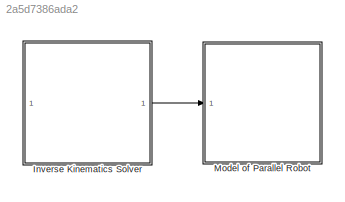
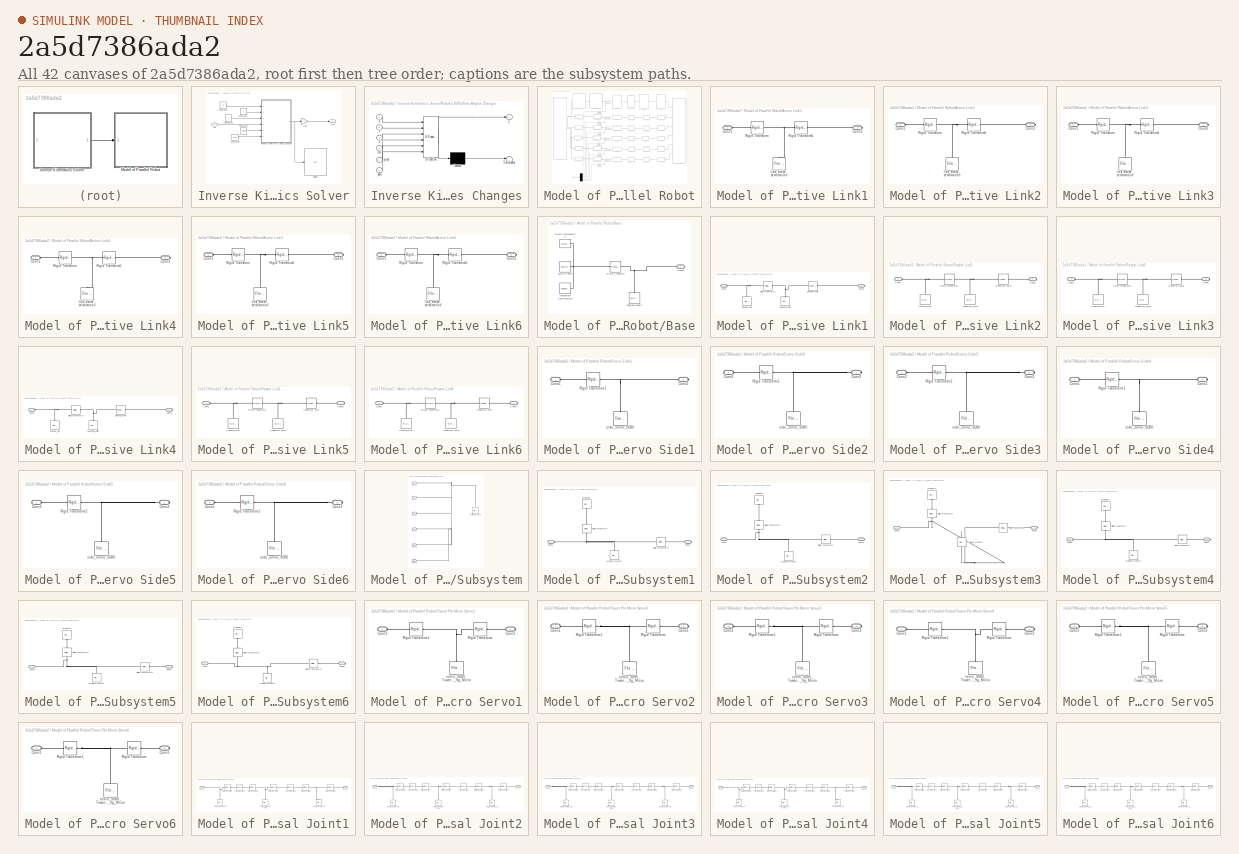
[diagram: thumbnail index - all 42 canvases of the model, root first then tree order]
MODEL slx_2a5d7386ada2
KIND model
CONFIG AbsTol = auto
CONFIG EnableMultiTasking = off
CONFIG FixedStep = auto
CONFIG MaxStep = auto
CONFIG MinStep = auto
CONFIG RelTol = 1e-3
CONFIG SampleTimeConstraint = Unconstrained
CONFIG SolverName = VariableStepAuto
CONFIG StartTime = 0.0
CONFIG StopTime = 34
WORKSPACE source: mxarray member
WORKSPACE AL = [69.992 60.9767621135 -60.9767621135 -69.992 -9.01523788647 9.01523788647 30 45.6148500617 45.6148500617 30 -75.6148500617 -75.6148500617 ... (18 elements, 6x3)]
WORKSPACE Alpha = [0.526894789881 2.61469786371 0.526894789881 2.61469786371 0.526894789881 2.61469786371]
WORKSPACE Alpha_ = [0.52689 2.6147 0.52689 2.6147 0.52689 2.6147]
WORKSPACE R = 71.492
WORKSPACE d = 58
WORKSPACE l = 1.5
WORKSPACE out: Simulink.SimulationOutput (value not decoded)
WORKSPACE p = 25
WORKSPACE q = 5.79
WORKSPACE r = 17.5
WORKSPACE rotangle = 1.0471975512
WORKSPACE smbData: object (value not decoded)
WORKSPACE smiData: object (value not decoded)
BLOCK [SubSystem] Inverse Kinematics Solver
  Ports = [1, 1]
  RequestExecContextInheritance = off
BLOCK [Constant] Inverse Kinematics Solver/Constant1
  Value = 0
BLOCK [Constant] Inverse Kinematics Solver/Constant2
  Value = -0.034
BLOCK [Constant] Inverse Kinematics Solver/Constant3
  Value = 0.01
BLOCK [Constant] Inverse Kinematics Solver/Constant4
  Value = 0
BLOCK [Constant] Inverse Kinematics Solver/Constant5
  Value = 0
BLOCK [Display] Inverse Kinematics Solver/Display
  Decimation = 1
  Ports = [1]
BLOCK [Gain] Inverse Kinematics Solver/Gain
  Gain = -1
BLOCK [Outport] Inverse Kinematics Solver/Out1
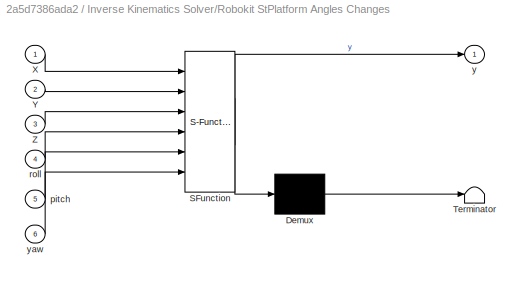
BLOCK [SubSystem] Inverse Kinematics Solver/Robokit StPlatform Angles Changes
  ErrorFcn = Stateflow.Translate.translate
  PermitHierarchicalResolution = ExplicitOnly
  Ports = [6, 1]
  RequestExecContextInheritance = off
  SFBlockType = MATLAB Function
  TreatAsAtomicUnit = on
BLOCK [Demux] Inverse Kinematics Solver/Robokit StPlatform Angles Changes/ Demux 
  Outputs = 1
  Ports = [1, 1]
BLOCK [S-Function] Inverse Kinematics Solver/Robokit StPlatform Angles Changes/ SFunction 
  EnableBusSupport = on
  FunctionName = sf_sfun
  PortCounts = [6 2]
  Ports = [6, 2]
  SFcnIsStateOwnerBlock = off
  SFunctionDeploymentMode = off
  Tag = Stateflow S-Function 1
BLOCK [Terminator] Inverse Kinematics Solver/Robokit StPlatform Angles Changes/ Terminator 
BLOCK [Inport] Inverse Kinematics Solver/Robokit StPlatform Angles Changes/X
BLOCK [Inport] Inverse Kinematics Solver/Robokit StPlatform Angles Changes/Y
  Port = 2
BLOCK [Inport] Inverse Kinematics Solver/Robokit StPlatform Angles Changes/Z
  Port = 3
BLOCK [Inport] Inverse Kinematics Solver/Robokit StPlatform Angles Changes/pitch
  Port = 5
BLOCK [Inport] Inverse Kinematics Solver/Robokit StPlatform Angles Changes/roll
  Port = 4
BLOCK [Outport] Inverse Kinematics Solver/Robokit StPlatform Angles Changes/y
  VectorParamsAs1DForOutWhenUnconnected = off
BLOCK [Inport] Inverse Kinematics Solver/Robokit StPlatform Angles Changes/yaw
  Port = 6
BLOCK [Inport] Inverse Kinematics Solver/roll
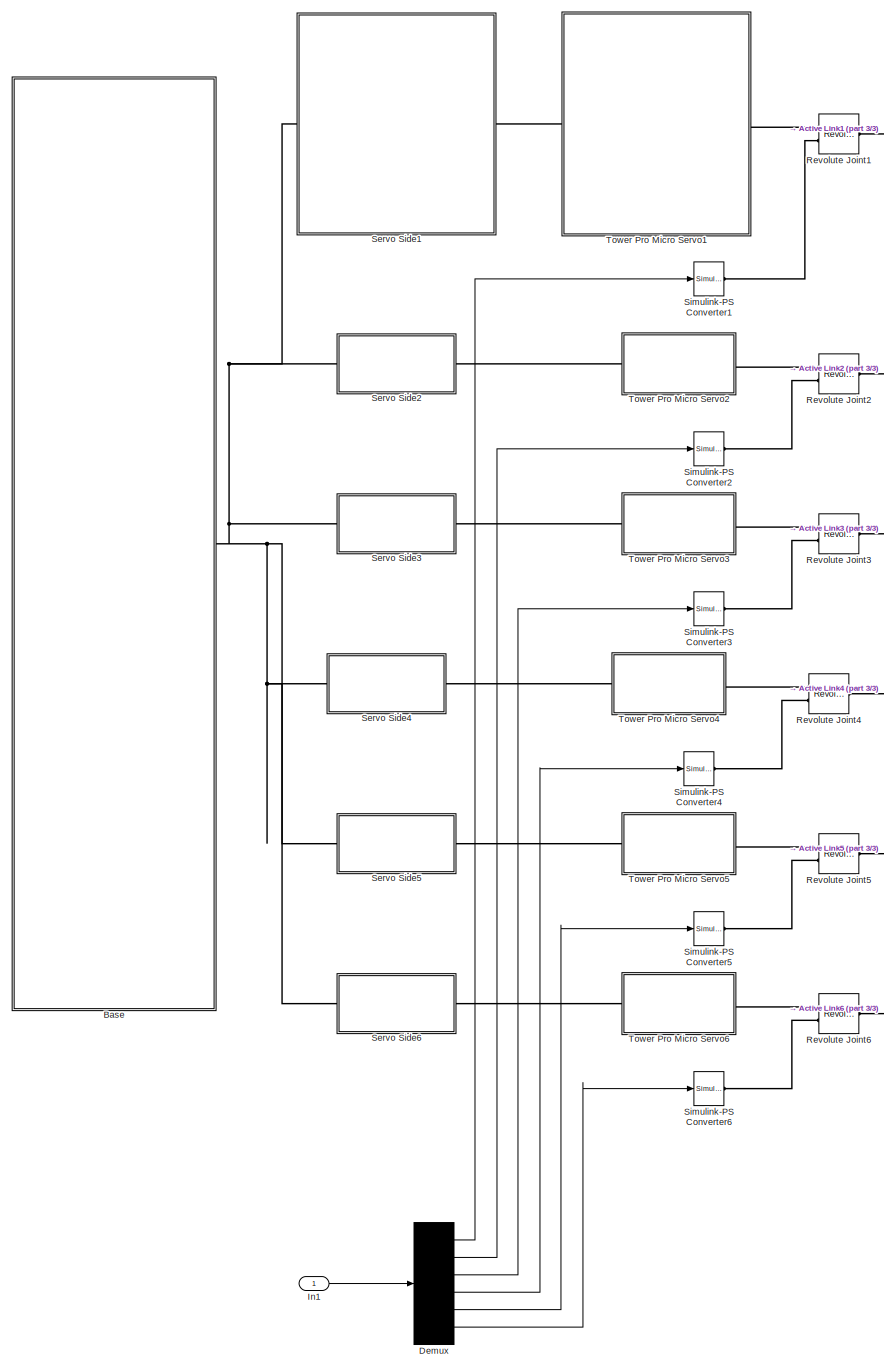
[diagram: Model of Parallel Robot - part 1/3, left side, full height]
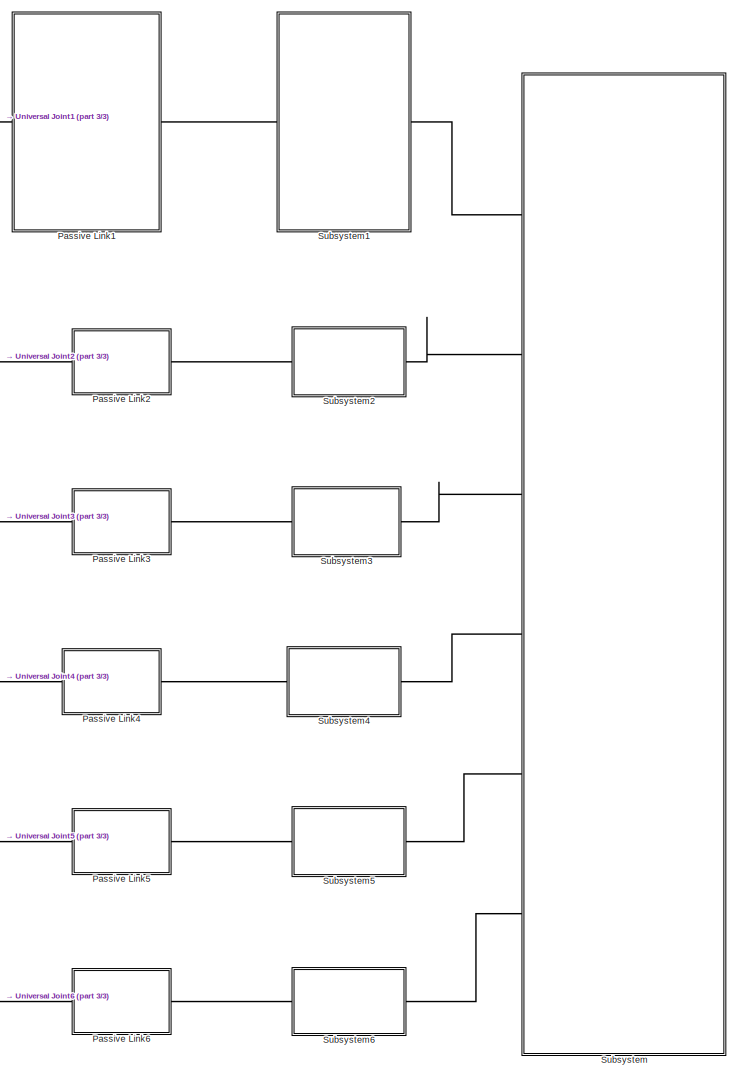
[diagram: Model of Parallel Robot - part 2/3, right side, full height]
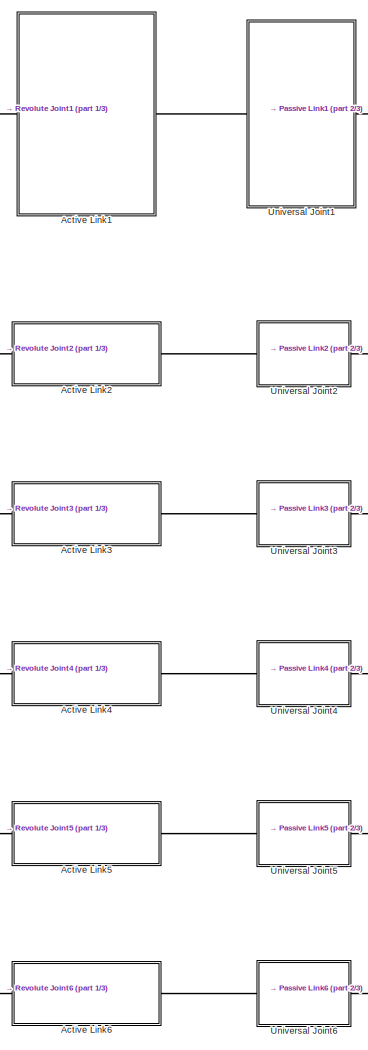
[diagram: Model of Parallel Robot - part 3/3, center side, full height]
BLOCK [SubSystem] Model of Parallel Robot
  Ports = [1]
  RequestExecContextInheritance = off
BLOCK [SubSystem] Model of Parallel Robot/Active Link1
  Ports = [0, 0, 0, 0, 0, 1, 1]
  RequestExecContextInheritance = off
BLOCK [PMIOPort] Model of Parallel Robot/Active Link1/Conn1
  Side = Left
BLOCK [PMIOPort] Model of Parallel Robot/Active Link1/Conn2
  Port = 2
  Side = Right
BLOCK [Reference] Model of Parallel Robot/Active Link1/Rigid Transform  REF=sm_lib/Frames and
Transforms/Rigid
Transform
  Ports = [0, 0, 0, 0, 0, 1, 1]
  SourceBlock = sm_lib/Frames and\nTransforms/Rigid\nTransform
  SourceProductBaseCode = MS
  SourceType = Rigid\nTransform
BLOCK [Reference] Model of Parallel Robot/Active Link1/Rigid Transform5  REF=sm_lib/Frames and
Transforms/Rigid
Transform
  Ports = [0, 0, 0, 0, 0, 1, 1]
  SourceBlock = sm_lib/Frames and\nTransforms/Rigid\nTransform
  SourceProductBaseCode = MS
  SourceType = Rigid\nTransform
BLOCK [Reference] Model of Parallel Robot/Active Link1/link_active_servomotion  REF=sm_lib/Body Elements/File Solid
  NameLocation = right
  Ports = [0, 0, 0, 0, 0, 0, 1]
  SourceBlock = sm_lib/Body Elements/File Solid
  SourceProductBaseCode = MS
  SourceType = File Solid
BLOCK [SubSystem] Model of Parallel Robot/Active Link2
  Ports = [0, 0, 0, 0, 0, 1, 1]
  RequestExecContextInheritance = off
BLOCK [PMIOPort] Model of Parallel Robot/Active Link2/Conn1
  Side = Left
BLOCK [PMIOPort] Model of Parallel Robot/Active Link2/Conn2
  Port = 2
  Side = Right
BLOCK [Reference] Model of Parallel Robot/Active Link2/Rigid Transform  REF=sm_lib/Frames and
Transforms/Rigid
Transform
  Ports = [0, 0, 0, 0, 0, 1, 1]
  SourceBlock = sm_lib/Frames and\nTransforms/Rigid\nTransform
  SourceProductBaseCode = MS
  SourceType = Rigid\nTransform
BLOCK [Reference] Model of Parallel Robot/Active Link2/Rigid Transform5  REF=sm_lib/Frames and
Transforms/Rigid
Transform
  Ports = [0, 0, 0, 0, 0, 1, 1]
  SourceBlock = sm_lib/Frames and\nTransforms/Rigid\nTransform
  SourceProductBaseCode = MS
  SourceType = Rigid\nTransform
BLOCK [Reference] Model of Parallel Robot/Active Link2/link_active_servomotion  REF=sm_lib/Body Elements/File Solid
  NameLocation = right
  Ports = [0, 0, 0, 0, 0, 0, 1]
  SourceBlock = sm_lib/Body Elements/File Solid
  SourceProductBaseCode = MS
  SourceType = File Solid
BLOCK [SubSystem] Model of Parallel Robot/Active Link3
  Ports = [0, 0, 0, 0, 0, 1, 1]
  RequestExecContextInheritance = off
BLOCK [PMIOPort] Model of Parallel Robot/Active Link3/Conn1
  Side = Left
BLOCK [PMIOPort] Model of Parallel Robot/Active Link3/Conn2
  Port = 2
  Side = Right
BLOCK [Reference] Model of Parallel Robot/Active Link3/Rigid Transform  REF=sm_lib/Frames and
Transforms/Rigid
Transform
  Ports = [0, 0, 0, 0, 0, 1, 1]
  SourceBlock = sm_lib/Frames and\nTransforms/Rigid\nTransform
  SourceProductBaseCode = MS
  SourceType = Rigid\nTransform
BLOCK [Reference] Model of Parallel Robot/Active Link3/Rigid Transform5  REF=sm_lib/Frames and
Transforms/Rigid
Transform
  Ports = [0, 0, 0, 0, 0, 1, 1]
  SourceBlock = sm_lib/Frames and\nTransforms/Rigid\nTransform
  SourceProductBaseCode = MS
  SourceType = Rigid\nTransform
BLOCK [Reference] Model of Parallel Robot/Active Link3/link_active_servomotion  REF=sm_lib/Body Elements/File Solid
  NameLocation = right
  Ports = [0, 0, 0, 0, 0, 0, 1]
  SourceBlock = sm_lib/Body Elements/File Solid
  SourceProductBaseCode = MS
  SourceType = File Solid
BLOCK [SubSystem] Model of Parallel Robot/Active Link4
  Ports = [0, 0, 0, 0, 0, 1, 1]
  RequestExecContextInheritance = off
BLOCK [PMIOPort] Model of Parallel Robot/Active Link4/Conn1
  Side = Left
BLOCK [PMIOPort] Model of Parallel Robot/Active Link4/Conn2
  Port = 2
  Side = Right
BLOCK [Reference] Model of Parallel Robot/Active Link4/Rigid Transform  REF=sm_lib/Frames and
Transforms/Rigid
Transform
  Ports = [0, 0, 0, 0, 0, 1, 1]
  SourceBlock = sm_lib/Frames and\nTransforms/Rigid\nTransform
  SourceProductBaseCode = MS
  SourceType = Rigid\nTransform
BLOCK [Reference] Model of Parallel Robot/Active Link4/Rigid Transform5  REF=sm_lib/Frames and
Transforms/Rigid
Transform
  Ports = [0, 0, 0, 0, 0, 1, 1]
  SourceBlock = sm_lib/Frames and\nTransforms/Rigid\nTransform
  SourceProductBaseCode = MS
  SourceType = Rigid\nTransform
BLOCK [Reference] Model of Parallel Robot/Active Link4/link_active_servomotion  REF=sm_lib/Body Elements/File Solid
  NameLocation = right
  Ports = [0, 0, 0, 0, 0, 0, 1]
  SourceBlock = sm_lib/Body Elements/File Solid
  SourceProductBaseCode = MS
  SourceType = File Solid
BLOCK [SubSystem] Model of Parallel Robot/Active Link5
  Ports = [0, 0, 0, 0, 0, 1, 1]
  RequestExecContextInheritance = off
BLOCK [PMIOPort] Model of Parallel Robot/Active Link5/Conn1
  Side = Left
BLOCK [PMIOPort] Model of Parallel Robot/Active Link5/Conn2
  Port = 2
  Side = Right
BLOCK [Reference] Model of Parallel Robot/Active Link5/Rigid Transform  REF=sm_lib/Frames and
Transforms/Rigid
Transform
  Ports = [0, 0, 0, 0, 0, 1, 1]
  SourceBlock = sm_lib/Frames and\nTransforms/Rigid\nTransform
  SourceProductBaseCode = MS
  SourceType = Rigid\nTransform
BLOCK [Reference] Model of Parallel Robot/Active Link5/Rigid Transform5  REF=sm_lib/Frames and
Transforms/Rigid
Transform
  Ports = [0, 0, 0, 0, 0, 1, 1]
  SourceBlock = sm_lib/Frames and\nTransforms/Rigid\nTransform
  SourceProductBaseCode = MS
  SourceType = Rigid\nTransform
BLOCK [Reference] Model of Parallel Robot/Active Link5/link_active_servomotion  REF=sm_lib/Body Elements/File Solid
  NameLocation = right
  Ports = [0, 0, 0, 0, 0, 0, 1]
  SourceBlock = sm_lib/Body Elements/File Solid
  SourceProductBaseCode = MS
  SourceType = File Solid
BLOCK [SubSystem] Model of Parallel Robot/Active Link6
  Ports = [0, 0, 0, 0, 0, 1, 1]
  RequestExecContextInheritance = off
BLOCK [PMIOPort] Model of Parallel Robot/Active Link6/Conn1
  Side = Left
BLOCK [PMIOPort] Model of Parallel Robot/Active Link6/Conn2
  Port = 2
  Side = Right
BLOCK [Reference] Model of Parallel Robot/Active Link6/Rigid Transform  REF=sm_lib/Frames and
Transforms/Rigid
Transform
  Ports = [0, 0, 0, 0, 0, 1, 1]
  SourceBlock = sm_lib/Frames and\nTransforms/Rigid\nTransform
  SourceProductBaseCode = MS
  SourceType = Rigid\nTransform
BLOCK [Reference] Model of Parallel Robot/Active Link6/Rigid Transform5  REF=sm_lib/Frames and
Transforms/Rigid
Transform
  Ports = [0, 0, 0, 0, 0, 1, 1]
  SourceBlock = sm_lib/Frames and\nTransforms/Rigid\nTransform
  SourceProductBaseCode = MS
  SourceType = Rigid\nTransform
BLOCK [Reference] Model of Parallel Robot/Active Link6/link_active_servomotion  REF=sm_lib/Body Elements/File Solid
  NameLocation = right
  Ports = [0, 0, 0, 0, 0, 0, 1]
  SourceBlock = sm_lib/Body Elements/File Solid
  SourceProductBaseCode = MS
  SourceType = File Solid
BLOCK [SubSystem] Model of Parallel Robot/Base
  Ports = [0, 0, 0, 0, 0, 0, 1]
  RequestExecContextInheritance = off
BLOCK [PMIOPort] Model of Parallel Robot/Base/Conn2
  Side = Right
BLOCK [Reference] Model of Parallel Robot/Base/Mechanism Configuration  REF=sm_lib/Utilities/Mechanism
Configuration
  Ports = [0, 0, 0, 0, 0, 0, 1]
  SourceBlock = sm_lib/Utilities/Mechanism\nConfiguration
  SourceProductBaseCode = MS
  SourceType = Mechanism\nConfiguration
BLOCK [Reference] Model of Parallel Robot/Base/Rigid Transform  REF=sm_lib/Frames and
Transforms/Rigid
Transform
  Ports = [0, 0, 0, 0, 0, 1, 1]
  SourceBlock = sm_lib/Frames and\nTransforms/Rigid\nTransform
  SourceProductBaseCode = MS
  SourceType = Rigid\nTransform
BLOCK [Reference] Model of Parallel Robot/Base/Solver Configuration  REF=nesl_utility/Solver
Configuration
  Ports = [0, 0, 0, 0, 0, 0, 1]
  SourceBlock = nesl_utility/Solver\nConfiguration
  SourceProductBaseCode = PW,SS
  SourceType = Solver\nConfiguration
BLOCK [Reference] Model of Parallel Robot/Base/World Frame  REF=sm_lib/Frames and
Transforms/World Frame
  Ports = [0, 0, 0, 0, 0, 0, 1]
  SourceBlock = sm_lib/Frames and\nTransforms/World Frame
  SourceProductBaseCode = MS
  SourceType = World Frame
BLOCK [Reference] Model of Parallel Robot/Base/shaping_wheels  REF=sm_lib/Body Elements/File Solid
  NameLocation = right
  Ports = [0, 0, 0, 0, 0, 0, 1]
  SourceBlock = sm_lib/Body Elements/File Solid
  SourceProductBaseCode = MS
  SourceType = File Solid
BLOCK [Demux] Model of Parallel Robot/Demux
  Outputs = 6
  Ports = [1, 6]
BLOCK [Inport] Model of Parallel Robot/In1
BLOCK [SubSystem] Model of Parallel Robot/Passive Link1
  Ports = [0, 0, 0, 0, 0, 1, 1]
  RequestExecContextInheritance = off
BLOCK [PMIOPort] Model of Parallel Robot/Passive Link1/Conn1
  Side = Left
BLOCK [PMIOPort] Model of Parallel Robot/Passive Link1/Conn2
  Port = 2
  Side = Right
BLOCK [Reference] Model of Parallel Robot/Passive Link1/Passive_Link  REF=sm_lib/Body Elements/File Solid
  NameLocation = right
  Ports = [0, 0, 0, 0, 0, 0, 1]
  SourceBlock = sm_lib/Body Elements/File Solid
  SourceProductBaseCode = MS
  SourceType = File Solid
BLOCK [Reference] Model of Parallel Robot/Passive Link1/Rigid Transform1  REF=sm_lib/Frames and
Transforms/Rigid
Transform
  Ports = [0, 0, 0, 0, 0, 1, 1]
  SourceBlock = sm_lib/Frames and\nTransforms/Rigid\nTransform
  SourceProductBaseCode = MS
  SourceType = Rigid\nTransform
BLOCK [Reference] Model of Parallel Robot/Passive Link1/Spherical Joint  REF=sm_lib/Joints/Spherical
Joint
  Ports = [0, 0, 0, 0, 0, 1, 1]
  SourceBlock = sm_lib/Joints/Spherical\nJoint
  SourceProductBaseCode = MS
  SourceType = Spherical\nJoint
BLOCK [Reference] Model of Parallel Robot/Passive Link1/Spherical_Joint  REF=sm_lib/Body Elements/File Solid
  NameLocation = right
  Ports = [0, 0, 0, 0, 0, 0, 1]
  SourceBlock = sm_lib/Body Elements/File Solid
  SourceProductBaseCode = MS
  SourceType = File Solid
BLOCK [SubSystem] Model of Parallel Robot/Passive Link2
  Ports = [0, 0, 0, 0, 0, 1, 1]
  RequestExecContextInheritance = off
BLOCK [PMIOPort] Model of Parallel Robot/Passive Link2/Conn1
  Side = Left
BLOCK [PMIOPort] Model of Parallel Robot/Passive Link2/Conn2
  Port = 2
  Side = Right
BLOCK [Reference] Model of Parallel Robot/Passive Link2/Passive_Link  REF=sm_lib/Body Elements/File Solid
  NameLocation = right
  Ports = [0, 0, 0, 0, 0, 0, 1]
  SourceBlock = sm_lib/Body Elements/File Solid
  SourceProductBaseCode = MS
  SourceType = File Solid
BLOCK [Reference] Model of Parallel Robot/Passive Link2/Rigid Transform1  REF=sm_lib/Frames and
Transforms/Rigid
Transform
  Ports = [0, 0, 0, 0, 0, 1, 1]
  SourceBlock = sm_lib/Frames and\nTransforms/Rigid\nTransform
  SourceProductBaseCode = MS
  SourceType = Rigid\nTransform
BLOCK [Reference] Model of Parallel Robot/Passive Link2/Spherical Joint  REF=sm_lib/Joints/Spherical
Joint
  Ports = [0, 0, 0, 0, 0, 1, 1]
  SourceBlock = sm_lib/Joints/Spherical\nJoint
  SourceProductBaseCode = MS
  SourceType = Spherical\nJoint
BLOCK [Reference] Model of Parallel Robot/Passive Link2/Spherical_Joint  REF=sm_lib/Body Elements/File Solid
  NameLocation = right
  Ports = [0, 0, 0, 0, 0, 0, 1]
  SourceBlock = sm_lib/Body Elements/File Solid
  SourceProductBaseCode = MS
  SourceType = File Solid
BLOCK [SubSystem] Model of Parallel Robot/Passive Link3
  Ports = [0, 0, 0, 0, 0, 1, 1]
  RequestExecContextInheritance = off
BLOCK [PMIOPort] Model of Parallel Robot/Passive Link3/Conn1
  Side = Left
BLOCK [PMIOPort] Model of Parallel Robot/Passive Link3/Conn2
  Port = 2
  Side = Right
BLOCK [Reference] Model of Parallel Robot/Passive Link3/Passive_Link  REF=sm_lib/Body Elements/File Solid
  NameLocation = right
  Ports = [0, 0, 0, 0, 0, 0, 1]
  SourceBlock = sm_lib/Body Elements/File Solid
  SourceProductBaseCode = MS
  SourceType = File Solid
BLOCK [Reference] Model of Parallel Robot/Passive Link3/Rigid Transform1  REF=sm_lib/Frames and
Transforms/Rigid
Transform
  Ports = [0, 0, 0, 0, 0, 1, 1]
  SourceBlock = sm_lib/Frames and\nTransforms/Rigid\nTransform
  SourceProductBaseCode = MS
  SourceType = Rigid\nTransform
BLOCK [Reference] Model of Parallel Robot/Passive Link3/Spherical Joint  REF=sm_lib/Joints/Spherical
Joint
  Ports = [0, 0, 0, 0, 0, 1, 1]
  SourceBlock = sm_lib/Joints/Spherical\nJoint
  SourceProductBaseCode = MS
  SourceType = Spherical\nJoint
BLOCK [Reference] Model of Parallel Robot/Passive Link3/Spherical_Joint  REF=sm_lib/Body Elements/File Solid
  NameLocation = right
  Ports = [0, 0, 0, 0, 0, 0, 1]
  SourceBlock = sm_lib/Body Elements/File Solid
  SourceProductBaseCode = MS
  SourceType = File Solid
BLOCK [SubSystem] Model of Parallel Robot/Passive Link4
  Ports = [0, 0, 0, 0, 0, 1, 1]
  RequestExecContextInheritance = off
BLOCK [PMIOPort] Model of Parallel Robot/Passive Link4/Conn1
  Side = Left
BLOCK [PMIOPort] Model of Parallel Robot/Passive Link4/Conn2
  Port = 2
  Side = Right
BLOCK [Reference] Model of Parallel Robot/Passive Link4/Passive_Link  REF=sm_lib/Body Elements/File Solid
  NameLocation = right
  Ports = [0, 0, 0, 0, 0, 0, 1]
  SourceBlock = sm_lib/Body Elements/File Solid
  SourceProductBaseCode = MS
  SourceType = File Solid
BLOCK [Reference] Model of Parallel Robot/Passive Link4/Rigid Transform1  REF=sm_lib/Frames and
Transforms/Rigid
Transform
  Ports = [0, 0, 0, 0, 0, 1, 1]
  SourceBlock = sm_lib/Frames and\nTransforms/Rigid\nTransform
  SourceProductBaseCode = MS
  SourceType = Rigid\nTransform
BLOCK [Reference] Model of Parallel Robot/Passive Link4/Spherical Joint  REF=sm_lib/Joints/Spherical
Joint
  Ports = [0, 0, 0, 0, 0, 1, 1]
  SourceBlock = sm_lib/Joints/Spherical\nJoint
  SourceProductBaseCode = MS
  SourceType = Spherical\nJoint
BLOCK [Reference] Model of Parallel Robot/Passive Link4/Spherical_Joint  REF=sm_lib/Body Elements/File Solid
  NameLocation = right
  Ports = [0, 0, 0, 0, 0, 0, 1]
  SourceBlock = sm_lib/Body Elements/File Solid
  SourceProductBaseCode = MS
  SourceType = File Solid
BLOCK [SubSystem] Model of Parallel Robot/Passive Link5
  Ports = [0, 0, 0, 0, 0, 1, 1]
  RequestExecContextInheritance = off
BLOCK [PMIOPort] Model of Parallel Robot/Passive Link5/Conn1
  Side = Left
BLOCK [PMIOPort] Model of Parallel Robot/Passive Link5/Conn2
  Port = 2
  Side = Right
BLOCK [Reference] Model of Parallel Robot/Passive Link5/Passive_Link  REF=sm_lib/Body Elements/File Solid
  NameLocation = right
  Ports = [0, 0, 0, 0, 0, 0, 1]
  SourceBlock = sm_lib/Body Elements/File Solid
  SourceProductBaseCode = MS
  SourceType = File Solid
BLOCK [Reference] Model of Parallel Robot/Passive Link5/Rigid Transform1  REF=sm_lib/Frames and
Transforms/Rigid
Transform
  Ports = [0, 0, 0, 0, 0, 1, 1]
  SourceBlock = sm_lib/Frames and\nTransforms/Rigid\nTransform
  SourceProductBaseCode = MS
  SourceType = Rigid\nTransform
BLOCK [Reference] Model of Parallel Robot/Passive Link5/Spherical Joint  REF=sm_lib/Joints/Spherical
Joint
  Ports = [0, 0, 0, 0, 0, 1, 1]
  SourceBlock = sm_lib/Joints/Spherical\nJoint
  SourceProductBaseCode = MS
  SourceType = Spherical\nJoint
BLOCK [Reference] Model of Parallel Robot/Passive Link5/Spherical_Joint  REF=sm_lib/Body Elements/File Solid
  NameLocation = right
  Ports = [0, 0, 0, 0, 0, 0, 1]
  SourceBlock = sm_lib/Body Elements/File Solid
  SourceProductBaseCode = MS
  SourceType = File Solid
BLOCK [SubSystem] Model of Parallel Robot/Passive Link6
  Ports = [0, 0, 0, 0, 0, 1, 1]
  RequestExecContextInheritance = off
BLOCK [PMIOPort] Model of Parallel Robot/Passive Link6/Conn1
  Side = Left
BLOCK [PMIOPort] Model of Parallel Robot/Passive Link6/Conn2
  Port = 2
  Side = Right
BLOCK [Reference] Model of Parallel Robot/Passive Link6/Passive_Link  REF=sm_lib/Body Elements/File Solid
  NameLocation = right
  Ports = [0, 0, 0, 0, 0, 0, 1]
  SourceBlock = sm_lib/Body Elements/File Solid
  SourceProductBaseCode = MS
  SourceType = File Solid
BLOCK [Reference] Model of Parallel Robot/Passive Link6/Rigid Transform1  REF=sm_lib/Frames and
Transforms/Rigid
Transform
  Ports = [0, 0, 0, 0, 0, 1, 1]
  SourceBlock = sm_lib/Frames and\nTransforms/Rigid\nTransform
  SourceProductBaseCode = MS
  SourceType = Rigid\nTransform
BLOCK [Reference] Model of Parallel Robot/Passive Link6/Spherical Joint  REF=sm_lib/Joints/Spherical
Joint
  Ports = [0, 0, 0, 0, 0, 1, 1]
  SourceBlock = sm_lib/Joints/Spherical\nJoint
  SourceProductBaseCode = MS
  SourceType = Spherical\nJoint
BLOCK [Reference] Model of Parallel Robot/Passive Link6/Spherical_Joint  REF=sm_lib/Body Elements/File Solid
  NameLocation = right
  Ports = [0, 0, 0, 0, 0, 0, 1]
  SourceBlock = sm_lib/Body Elements/File Solid
  SourceProductBaseCode = MS
  SourceType = File Solid
BLOCK [Reference] Model of Parallel Robot/Revolute Joint1  REF=sm_lib/Joints/Revolute Joint
  Ports = [0, 0, 0, 0, 0, 2, 1]
  SourceBlock = sm_lib/Joints/Revolute Joint
  SourceProductBaseCode = MS
  SourceType = Revolute Joint
BLOCK [Reference] Model of Parallel Robot/Revolute Joint2  REF=sm_lib/Joints/Revolute Joint
  Ports = [0, 0, 0, 0, 0, 2, 1]
  SourceBlock = sm_lib/Joints/Revolute Joint
  SourceProductBaseCode = MS
  SourceType = Revolute Joint
BLOCK [Reference] Model of Parallel Robot/Revolute Joint3  REF=sm_lib/Joints/Revolute Joint
  Ports = [0, 0, 0, 0, 0, 2, 1]
  SourceBlock = sm_lib/Joints/Revolute Joint
  SourceProductBaseCode = MS
  SourceType = Revolute Joint
BLOCK [Reference] Model of Parallel Robot/Revolute Joint4  REF=sm_lib/Joints/Revolute Joint
  Ports = [0, 0, 0, 0, 0, 2, 1]
  SourceBlock = sm_lib/Joints/Revolute Joint
  SourceProductBaseCode = MS
  SourceType = Revolute Joint
BLOCK [Reference] Model of Parallel Robot/Revolute Joint5  REF=sm_lib/Joints/Revolute Joint
  Ports = [0, 0, 0, 0, 0, 2, 1]
  SourceBlock = sm_lib/Joints/Revolute Joint
  SourceProductBaseCode = MS
  SourceType = Revolute Joint
BLOCK [Reference] Model of Parallel Robot/Revolute Joint6  REF=sm_lib/Joints/Revolute Joint
  Ports = [0, 0, 0, 0, 0, 2, 1]
  SourceBlock = sm_lib/Joints/Revolute Joint
  SourceProductBaseCode = MS
  SourceType = Revolute Joint
BLOCK [SubSystem] Model of Parallel Robot/Servo Side1
  Ports = [0, 0, 0, 0, 0, 1, 1]
  RequestExecContextInheritance = off
BLOCK [PMIOPort] Model of Parallel Robot/Servo Side1/Conn1
  Side = Left
BLOCK [PMIOPort] Model of Parallel Robot/Servo Side1/Conn2
  Port = 2
  Side = Right
BLOCK [Reference] Model of Parallel Robot/Servo Side1/Rigid Transform2  REF=sm_lib/Frames and
Transforms/Rigid
Transform
  Ports = [0, 0, 0, 0, 0, 1, 1]
  SourceBlock = sm_lib/Frames and\nTransforms/Rigid\nTransform
  SourceProductBaseCode = MS
  SourceType = Rigid\nTransform
BLOCK [Reference] Model of Parallel Robot/Servo Side1/side_servo_SG90  REF=sm_lib/Body Elements/File Solid
  NameLocation = right
  Ports = [0, 0, 0, 0, 0, 0, 1]
  SourceBlock = sm_lib/Body Elements/File Solid
  SourceProductBaseCode = MS
  SourceType = File Solid
BLOCK [SubSystem] Model of Parallel Robot/Servo Side2
  Ports = [0, 0, 0, 0, 0, 1, 1]
  RequestExecContextInheritance = off
BLOCK [PMIOPort] Model of Parallel Robot/Servo Side2/Conn1
  Side = Left
BLOCK [PMIOPort] Model of Parallel Robot/Servo Side2/Conn2
  Port = 2
  Side = Right
BLOCK [Reference] Model of Parallel Robot/Servo Side2/Rigid Transform2  REF=sm_lib/Frames and
Transforms/Rigid
Transform
  Ports = [0, 0, 0, 0, 0, 1, 1]
  SourceBlock = sm_lib/Frames and\nTransforms/Rigid\nTransform
  SourceProductBaseCode = MS
  SourceType = Rigid\nTransform
BLOCK [Reference] Model of Parallel Robot/Servo Side2/side_servo_SG90  REF=sm_lib/Body Elements/File Solid
  NameLocation = right
  Ports = [0, 0, 0, 0, 0, 0, 1]
  SourceBlock = sm_lib/Body Elements/File Solid
  SourceProductBaseCode = MS
  SourceType = File Solid
BLOCK [SubSystem] Model of Parallel Robot/Servo Side3
  Ports = [0, 0, 0, 0, 0, 1, 1]
  RequestExecContextInheritance = off
BLOCK [PMIOPort] Model of Parallel Robot/Servo Side3/Conn1
  Side = Left
BLOCK [PMIOPort] Model of Parallel Robot/Servo Side3/Conn2
  Port = 2
  Side = Right
BLOCK [Reference] Model of Parallel Robot/Servo Side3/Rigid Transform2  REF=sm_lib/Frames and
Transforms/Rigid
Transform
  Ports = [0, 0, 0, 0, 0, 1, 1]
  SourceBlock = sm_lib/Frames and\nTransforms/Rigid\nTransform
  SourceProductBaseCode = MS
  SourceType = Rigid\nTransform
BLOCK [Reference] Model of Parallel Robot/Servo Side3/side_servo_SG90  REF=sm_lib/Body Elements/File Solid
  NameLocation = right
  Ports = [0, 0, 0, 0, 0, 0, 1]
  SourceBlock = sm_lib/Body Elements/File Solid
  SourceProductBaseCode = MS
  SourceType = File Solid
BLOCK [SubSystem] Model of Parallel Robot/Servo Side4
  Ports = [0, 0, 0, 0, 0, 1, 1]
  RequestExecContextInheritance = off
BLOCK [PMIOPort] Model of Parallel Robot/Servo Side4/Conn1
  Side = Left
BLOCK [PMIOPort] Model of Parallel Robot/Servo Side4/Conn2
  Port = 2
  Side = Right
BLOCK [Reference] Model of Parallel Robot/Servo Side4/Rigid Transform2  REF=sm_lib/Frames and
Transforms/Rigid
Transform
  Ports = [0, 0, 0, 0, 0, 1, 1]
  SourceBlock = sm_lib/Frames and\nTransforms/Rigid\nTransform
  SourceProductBaseCode = MS
  SourceType = Rigid\nTransform
BLOCK [Reference] Model of Parallel Robot/Servo Side4/side_servo_SG90  REF=sm_lib/Body Elements/File Solid
  NameLocation = right
  Ports = [0, 0, 0, 0, 0, 0, 1]
  SourceBlock = sm_lib/Body Elements/File Solid
  SourceProductBaseCode = MS
  SourceType = File Solid
BLOCK [SubSystem] Model of Parallel Robot/Servo Side5
  Ports = [0, 0, 0, 0, 0, 1, 1]
  RequestExecContextInheritance = off
BLOCK [PMIOPort] Model of Parallel Robot/Servo Side5/Conn1
  Side = Left
BLOCK [PMIOPort] Model of Parallel Robot/Servo Side5/Conn2
  Port = 2
  Side = Right
BLOCK [Reference] Model of Parallel Robot/Servo Side5/Rigid Transform2  REF=sm_lib/Frames and
Transforms/Rigid
Transform
  Ports = [0, 0, 0, 0, 0, 1, 1]
  SourceBlock = sm_lib/Frames and\nTransforms/Rigid\nTransform
  SourceProductBaseCode = MS
  SourceType = Rigid\nTransform
BLOCK [Reference] Model of Parallel Robot/Servo Side5/side_servo_SG90  REF=sm_lib/Body Elements/File Solid
  NameLocation = right
  Ports = [0, 0, 0, 0, 0, 0, 1]
  SourceBlock = sm_lib/Body Elements/File Solid
  SourceProductBaseCode = MS
  SourceType = File Solid
BLOCK [SubSystem] Model of Parallel Robot/Servo Side6
  Ports = [0, 0, 0, 0, 0, 1, 1]
  RequestExecContextInheritance = off
BLOCK [PMIOPort] Model of Parallel Robot/Servo Side6/Conn1
  Side = Left
BLOCK [PMIOPort] Model of Parallel Robot/Servo Side6/Conn2
  Port = 2
  Side = Right
BLOCK [Reference] Model of Parallel Robot/Servo Side6/Rigid Transform2  REF=sm_lib/Frames and
Transforms/Rigid
Transform
  Ports = [0, 0, 0, 0, 0, 1, 1]
  SourceBlock = sm_lib/Frames and\nTransforms/Rigid\nTransform
  SourceProductBaseCode = MS
  SourceType = Rigid\nTransform
BLOCK [Reference] Model of Parallel Robot/Servo Side6/side_servo_SG90  REF=sm_lib/Body Elements/File Solid
  NameLocation = right
  Ports = [0, 0, 0, 0, 0, 0, 1]
  SourceBlock = sm_lib/Body Elements/File Solid
  SourceProductBaseCode = MS
  SourceType = File Solid
BLOCK [Reference] Model of Parallel Robot/Simulink-PS Converter1  REF=nesl_utility/Simulink-PS
Converter
  Ports = [1, 0, 0, 0, 0, 0, 1]
  SourceBlock = nesl_utility/Simulink-PS\nConverter
  SourceProductBaseCode = PW,SS
  SourceType = Simulink-PS\nConverter
BLOCK [Reference] Model of Parallel Robot/Simulink-PS Converter2  REF=nesl_utility/Simulink-PS
Converter
  Ports = [1, 0, 0, 0, 0, 0, 1]
  SourceBlock = nesl_utility/Simulink-PS\nConverter
  SourceProductBaseCode = PW,SS
  SourceType = Simulink-PS\nConverter
BLOCK [Reference] Model of Parallel Robot/Simulink-PS Converter3  REF=nesl_utility/Simulink-PS
Converter
  Ports = [1, 0, 0, 0, 0, 0, 1]
  SourceBlock = nesl_utility/Simulink-PS\nConverter
  SourceProductBaseCode = PW,SS
  SourceType = Simulink-PS\nConverter
BLOCK [Reference] Model of Parallel Robot/Simulink-PS Converter4  REF=nesl_utility/Simulink-PS
Converter
  Ports = [1, 0, 0, 0, 0, 0, 1]
  SourceBlock = nesl_utility/Simulink-PS\nConverter
  SourceProductBaseCode = PW,SS
  SourceType = Simulink-PS\nConverter
BLOCK [Reference] Model of Parallel Robot/Simulink-PS Converter5  REF=nesl_utility/Simulink-PS
Converter
  Ports = [1, 0, 0, 0, 0, 0, 1]
  SourceBlock = nesl_utility/Simulink-PS\nConverter
  SourceProductBaseCode = PW,SS
  SourceType = Simulink-PS\nConverter
BLOCK [Reference] Model of Parallel Robot/Simulink-PS Converter6  REF=nesl_utility/Simulink-PS
Converter
  Ports = [1, 0, 0, 0, 0, 0, 1]
  SourceBlock = nesl_utility/Simulink-PS\nConverter
  SourceProductBaseCode = PW,SS
  SourceType = Simulink-PS\nConverter
BLOCK [SubSystem] Model of Parallel Robot/Subsystem
  Ports = [0, 0, 0, 0, 0, 6]
  RequestExecContextInheritance = off
BLOCK [PMIOPort] Model of Parallel Robot/Subsystem/Conn1
  Side = Left
BLOCK [PMIOPort] Model of Parallel Robot/Subsystem/Conn2
  Port = 2
  Side = Left
BLOCK [PMIOPort] Model of Parallel Robot/Subsystem/Conn3
  Port = 3
  Side = Left
BLOCK [PMIOPort] Model of Parallel Robot/Subsystem/Conn4
  Port = 4
  Side = Left
BLOCK [PMIOPort] Model of Parallel Robot/Subsystem/Conn5
  Port = 5
  Side = Left
BLOCK [PMIOPort] Model of Parallel Robot/Subsystem/Conn6
  Port = 6
  Side = Left
BLOCK [Reference] Model of Parallel Robot/Subsystem/shaping_cover  REF=sm_lib/Body Elements/File Solid
  NameLocation = right
  Ports = [0, 0, 0, 0, 0, 0, 1]
  SourceBlock = sm_lib/Body Elements/File Solid
  SourceProductBaseCode = MS
  SourceType = File Solid
BLOCK [SubSystem] Model of Parallel Robot/Subsystem1
  Ports = [0, 0, 0, 0, 0, 1, 1]
  RequestExecContextInheritance = off
BLOCK [PMIOPort] Model of Parallel Robot/Subsystem1/Conn1
  Side = Left
BLOCK [PMIOPort] Model of Parallel Robot/Subsystem1/Conn2
  Port = 2
  Side = Right
BLOCK [Reference] Model of Parallel Robot/Subsystem1/Magnet1  REF=sm_lib/Body Elements/File Solid
  NameLocation = left
  Ports = [0, 0, 0, 0, 0, 0, 1]
  SourceBlock = sm_lib/Body Elements/File Solid
  SourceProductBaseCode = MS
  SourceType = File Solid
BLOCK [Reference] Model of Parallel Robot/Subsystem1/Magnet_mount1  REF=sm_lib/Body Elements/File Solid
  NameLocation = right
  Ports = [0, 0, 0, 0, 0, 0, 1]
  SourceBlock = sm_lib/Body Elements/File Solid
  SourceProductBaseCode = MS
  SourceType = File Solid
BLOCK [Reference] Model of Parallel Robot/Subsystem1/Rigid Transform2  REF=sm_lib/Frames and
Transforms/Rigid
Transform
  NameLocation = right
  Ports = [0, 0, 0, 0, 0, 1, 1]
  SourceBlock = sm_lib/Frames and\nTransforms/Rigid\nTransform
  SourceProductBaseCode = MS
  SourceType = Rigid\nTransform
BLOCK [Reference] Model of Parallel Robot/Subsystem1/Rigid Transform3  REF=sm_lib/Frames and
Transforms/Rigid
Transform
  Ports = [0, 0, 0, 0, 0, 1, 1]
  SourceBlock = sm_lib/Frames and\nTransforms/Rigid\nTransform
  SourceProductBaseCode = MS
  SourceType = Rigid\nTransform
BLOCK [SubSystem] Model of Parallel Robot/Subsystem2
  Ports = [0, 0, 0, 0, 0, 1, 1]
  RequestExecContextInheritance = off
BLOCK [PMIOPort] Model of Parallel Robot/Subsystem2/Conn1
  Side = Left
BLOCK [PMIOPort] Model of Parallel Robot/Subsystem2/Conn2
  Port = 2
  Side = Right
BLOCK [Reference] Model of Parallel Robot/Subsystem2/Magnet2  REF=sm_lib/Body Elements/File Solid
  NameLocation = left
  Ports = [0, 0, 0, 0, 0, 0, 1]
  SourceBlock = sm_lib/Body Elements/File Solid
  SourceProductBaseCode = MS
  SourceType = File Solid
BLOCK [Reference] Model of Parallel Robot/Subsystem2/Magnet_mount2  REF=sm_lib/Body Elements/File Solid
  NameLocation = right
  Ports = [0, 0, 0, 0, 0, 0, 1]
  SourceBlock = sm_lib/Body Elements/File Solid
  SourceProductBaseCode = MS
  SourceType = File Solid
BLOCK [Reference] Model of Parallel Robot/Subsystem2/Rigid Transform4  REF=sm_lib/Frames and
Transforms/Rigid
Transform
  Ports = [0, 0, 0, 0, 0, 1, 1]
  SourceBlock = sm_lib/Frames and\nTransforms/Rigid\nTransform
  SourceProductBaseCode = MS
  SourceType = Rigid\nTransform
BLOCK [Reference] Model of Parallel Robot/Subsystem2/Rigid Transform5  REF=sm_lib/Frames and
Transforms/Rigid
Transform
  NameLocation = right
  Ports = [0, 0, 0, 0, 0, 1, 1]
  SourceBlock = sm_lib/Frames and\nTransforms/Rigid\nTransform
  SourceProductBaseCode = MS
  SourceType = Rigid\nTransform
BLOCK [SubSystem] Model of Parallel Robot/Subsystem3
  Ports = [0, 0, 0, 0, 0, 1, 1]
  RequestExecContextInheritance = off
BLOCK [PMIOPort] Model of Parallel Robot/Subsystem3/Conn1
  Side = Left
BLOCK [PMIOPort] Model of Parallel Robot/Subsystem3/Conn2
  Port = 2
  Side = Right
BLOCK [Reference] Model of Parallel Robot/Subsystem3/Magnet3  REF=sm_lib/Body Elements/File Solid
  NameLocation = left
  Ports = [0, 0, 0, 0, 0, 0, 1]
  SourceBlock = sm_lib/Body Elements/File Solid
  SourceProductBaseCode = MS
  SourceType = File Solid
BLOCK [Reference] Model of Parallel Robot/Subsystem3/Magnet_mount3  REF=sm_lib/Body Elements/File Solid
  NameLocation = right
  Ports = [0, 0, 0, 0, 0, 0, 1]
  SourceBlock = sm_lib/Body Elements/File Solid
  SourceProductBaseCode = MS
  SourceType = File Solid
BLOCK [Reference] Model of Parallel Robot/Subsystem3/Rigid Transform6  REF=sm_lib/Frames and
Transforms/Rigid
Transform
  Ports = [0, 0, 0, 0, 0, 1, 1]
  SourceBlock = sm_lib/Frames and\nTransforms/Rigid\nTransform
  SourceProductBaseCode = MS
  SourceType = Rigid\nTransform
BLOCK [Reference] Model of Parallel Robot/Subsystem3/Rigid Transform8  REF=sm_lib/Frames and
Transforms/Rigid
Transform
  NameLocation = right
  Ports = [0, 0, 0, 0, 0, 1, 1]
  SourceBlock = sm_lib/Frames and\nTransforms/Rigid\nTransform
  SourceProductBaseCode = MS
  SourceType = Rigid\nTransform
BLOCK [SubSystem] Model of Parallel Robot/Subsystem4
  Ports = [0, 0, 0, 0, 0, 1, 1]
  RequestExecContextInheritance = off
BLOCK [PMIOPort] Model of Parallel Robot/Subsystem4/Conn1
  Side = Left
BLOCK [PMIOPort] Model of Parallel Robot/Subsystem4/Conn2
  Port = 2
  Side = Right
BLOCK [Reference] Model of Parallel Robot/Subsystem4/Magnet4  REF=sm_lib/Body Elements/File Solid
  NameLocation = left
  Ports = [0, 0, 0, 0, 0, 0, 1]
  SourceBlock = sm_lib/Body Elements/File Solid
  SourceProductBaseCode = MS
  SourceType = File Solid
BLOCK [Reference] Model of Parallel Robot/Subsystem4/Magnet_mount4  REF=sm_lib/Body Elements/File Solid
  NameLocation = right
  Ports = [0, 0, 0, 0, 0, 0, 1]
  SourceBlock = sm_lib/Body Elements/File Solid
  SourceProductBaseCode = MS
  SourceType = File Solid
BLOCK [Reference] Model of Parallel Robot/Subsystem4/Rigid Transform7  REF=sm_lib/Frames and
Transforms/Rigid
Transform
  NameLocation = right
  Ports = [0, 0, 0, 0, 0, 1, 1]
  SourceBlock = sm_lib/Frames and\nTransforms/Rigid\nTransform
  SourceProductBaseCode = MS
  SourceType = Rigid\nTransform
BLOCK [Reference] Model of Parallel Robot/Subsystem4/Rigid Transform9  REF=sm_lib/Frames and
Transforms/Rigid
Transform
  Ports = [0, 0, 0, 0, 0, 1, 1]
  SourceBlock = sm_lib/Frames and\nTransforms/Rigid\nTransform
  SourceProductBaseCode = MS
  SourceType = Rigid\nTransform
BLOCK [SubSystem] Model of Parallel Robot/Subsystem5
  Ports = [0, 0, 0, 0, 0, 1, 1]
  RequestExecContextInheritance = off
BLOCK [PMIOPort] Model of Parallel Robot/Subsystem5/Conn1
  Side = Left
BLOCK [PMIOPort] Model of Parallel Robot/Subsystem5/Conn2
  Port = 2
  Side = Right
BLOCK [Reference] Model of Parallel Robot/Subsystem5/Magnet5  REF=sm_lib/Body Elements/File Solid
  NameLocation = left
  Ports = [0, 0, 0, 0, 0, 0, 1]
  SourceBlock = sm_lib/Body Elements/File Solid
  SourceProductBaseCode = MS
  SourceType = File Solid
BLOCK [Reference] Model of Parallel Robot/Subsystem5/Magnet_mount5  REF=sm_lib/Body Elements/File Solid
  NameLocation = right
  Ports = [0, 0, 0, 0, 0, 0, 1]
  SourceBlock = sm_lib/Body Elements/File Solid
  SourceProductBaseCode = MS
  SourceType = File Solid
BLOCK [Reference] Model of Parallel Robot/Subsystem5/Rigid Transform10  REF=sm_lib/Frames and
Transforms/Rigid
Transform
  Ports = [0, 0, 0, 0, 0, 1, 1]
  SourceBlock = sm_lib/Frames and\nTransforms/Rigid\nTransform
  SourceProductBaseCode = MS
  SourceType = Rigid\nTransform
BLOCK [Reference] Model of Parallel Robot/Subsystem5/Rigid Transform11  REF=sm_lib/Frames and
Transforms/Rigid
Transform
  NameLocation = right
  Ports = [0, 0, 0, 0, 0, 1, 1]
  SourceBlock = sm_lib/Frames and\nTransforms/Rigid\nTransform
  SourceProductBaseCode = MS
  SourceType = Rigid\nTransform
BLOCK [SubSystem] Model of Parallel Robot/Subsystem6
  Ports = [0, 0, 0, 0, 0, 1, 1]
  RequestExecContextInheritance = off
BLOCK [PMIOPort] Model of Parallel Robot/Subsystem6/Conn1
  Side = Left
BLOCK [PMIOPort] Model of Parallel Robot/Subsystem6/Conn2
  Port = 2
  Side = Right
BLOCK [Reference] Model of Parallel Robot/Subsystem6/Magnet6  REF=sm_lib/Body Elements/File Solid
  NameLocation = left
  Ports = [0, 0, 0, 0, 0, 0, 1]
  SourceBlock = sm_lib/Body Elements/File Solid
  SourceProductBaseCode = MS
  SourceType = File Solid
BLOCK [Reference] Model of Parallel Robot/Subsystem6/Magnet_mount6  REF=sm_lib/Body Elements/File Solid
  NameLocation = right
  Ports = [0, 0, 0, 0, 0, 0, 1]
  SourceBlock = sm_lib/Body Elements/File Solid
  SourceProductBaseCode = MS
  SourceType = File Solid
BLOCK [Reference] Model of Parallel Robot/Subsystem6/Rigid Transform12  REF=sm_lib/Frames and
Transforms/Rigid
Transform
  Ports = [0, 0, 0, 0, 0, 1, 1]
  SourceBlock = sm_lib/Frames and\nTransforms/Rigid\nTransform
  SourceProductBaseCode = MS
  SourceType = Rigid\nTransform
BLOCK [Reference] Model of Parallel Robot/Subsystem6/Rigid Transform13  REF=sm_lib/Frames and
Transforms/Rigid
Transform
  NameLocation = right
  Ports = [0, 0, 0, 0, 0, 1, 1]
  SourceBlock = sm_lib/Frames and\nTransforms/Rigid\nTransform
  SourceProductBaseCode = MS
  SourceType = Rigid\nTransform
BLOCK [SubSystem] Model of Parallel Robot/Tower Pro Micro Servo1
  Ports = [0, 0, 0, 0, 0, 1, 1]
  RequestExecContextInheritance = off
BLOCK [PMIOPort] Model of Parallel Robot/Tower Pro Micro Servo1/Conn1
  Side = Left
BLOCK [PMIOPort] Model of Parallel Robot/Tower Pro Micro Servo1/Conn2
  Port = 2
  Side = Right
BLOCK [Reference] Model of Parallel Robot/Tower Pro Micro Servo1/Rigid Transform  REF=sm_lib/Frames and
Transforms/Rigid
Transform
  Ports = [0, 0, 0, 0, 0, 1, 1]
  SourceBlock = sm_lib/Frames and\nTransforms/Rigid\nTransform
  SourceProductBaseCode = MS
  SourceType = Rigid\nTransform
BLOCK [Reference] Model of Parallel Robot/Tower Pro Micro Servo1/Rigid Transform1  REF=sm_lib/Frames and
Transforms/Rigid
Transform
  Ports = [0, 0, 0, 0, 0, 1, 1]
  SourceBlock = sm_lib/Frames and\nTransforms/Rigid\nTransform
  SourceProductBaseCode = MS
  SourceType = Rigid\nTransform
BLOCK [Reference] Model of Parallel Robot/Tower Pro Micro Servo1/servo_SG90_TowerPro_9g_Micro  REF=sm_lib/Body Elements/File Solid
  NameLocation = right
  Ports = [0, 0, 0, 0, 0, 0, 1]
  SourceBlock = sm_lib/Body Elements/File Solid
  SourceProductBaseCode = MS
  SourceType = File Solid
BLOCK [SubSystem] Model of Parallel Robot/Tower Pro Micro Servo2
  Ports = [0, 0, 0, 0, 0, 1, 1]
  RequestExecContextInheritance = off
BLOCK [PMIOPort] Model of Parallel Robot/Tower Pro Micro Servo2/Conn1
  Side = Left
BLOCK [PMIOPort] Model of Parallel Robot/Tower Pro Micro Servo2/Conn2
  Port = 2
  Side = Right
BLOCK [Reference] Model of Parallel Robot/Tower Pro Micro Servo2/Rigid Transform  REF=sm_lib/Frames and
Transforms/Rigid
Transform
  Ports = [0, 0, 0, 0, 0, 1, 1]
  SourceBlock = sm_lib/Frames and\nTransforms/Rigid\nTransform
  SourceProductBaseCode = MS
  SourceType = Rigid\nTransform
BLOCK [Reference] Model of Parallel Robot/Tower Pro Micro Servo2/Rigid Transform1  REF=sm_lib/Frames and
Transforms/Rigid
Transform
  Ports = [0, 0, 0, 0, 0, 1, 1]
  SourceBlock = sm_lib/Frames and\nTransforms/Rigid\nTransform
  SourceProductBaseCode = MS
  SourceType = Rigid\nTransform
BLOCK [Reference] Model of Parallel Robot/Tower Pro Micro Servo2/servo_SG90_TowerPro_9g_Micro  REF=sm_lib/Body Elements/File Solid
  NameLocation = right
  Ports = [0, 0, 0, 0, 0, 0, 1]
  SourceBlock = sm_lib/Body Elements/File Solid
  SourceProductBaseCode = MS
  SourceType = File Solid
BLOCK [SubSystem] Model of Parallel Robot/Tower Pro Micro Servo3
  Ports = [0, 0, 0, 0, 0, 1, 1]
  RequestExecContextInheritance = off
BLOCK [PMIOPort] Model of Parallel Robot/Tower Pro Micro Servo3/Conn1
  Side = Left
BLOCK [PMIOPort] Model of Parallel Robot/Tower Pro Micro Servo3/Conn2
  Port = 2
  Side = Right
BLOCK [Reference] Model of Parallel Robot/Tower Pro Micro Servo3/Rigid Transform  REF=sm_lib/Frames and
Transforms/Rigid
Transform
  Ports = [0, 0, 0, 0, 0, 1, 1]
  SourceBlock = sm_lib/Frames and\nTransforms/Rigid\nTransform
  SourceProductBaseCode = MS
  SourceType = Rigid\nTransform
BLOCK [Reference] Model of Parallel Robot/Tower Pro Micro Servo3/Rigid Transform1  REF=sm_lib/Frames and
Transforms/Rigid
Transform
  Ports = [0, 0, 0, 0, 0, 1, 1]
  SourceBlock = sm_lib/Frames and\nTransforms/Rigid\nTransform
  SourceProductBaseCode = MS
  SourceType = Rigid\nTransform
BLOCK [Reference] Model of Parallel Robot/Tower Pro Micro Servo3/servo_SG90_TowerPro_9g_Micro  REF=sm_lib/Body Elements/File Solid
  NameLocation = right
  Ports = [0, 0, 0, 0, 0, 0, 1]
  SourceBlock = sm_lib/Body Elements/File Solid
  SourceProductBaseCode = MS
  SourceType = File Solid
BLOCK [SubSystem] Model of Parallel Robot/Tower Pro Micro Servo4
  Ports = [0, 0, 0, 0, 0, 1, 1]
  RequestExecContextInheritance = off
BLOCK [PMIOPort] Model of Parallel Robot/Tower Pro Micro Servo4/Conn1
  Side = Left
BLOCK [PMIOPort] Model of Parallel Robot/Tower Pro Micro Servo4/Conn2
  Port = 2
  Side = Right
BLOCK [Reference] Model of Parallel Robot/Tower Pro Micro Servo4/Rigid Transform  REF=sm_lib/Frames and
Transforms/Rigid
Transform
  Ports = [0, 0, 0, 0, 0, 1, 1]
  SourceBlock = sm_lib/Frames and\nTransforms/Rigid\nTransform
  SourceProductBaseCode = MS
  SourceType = Rigid\nTransform
BLOCK [Reference] Model of Parallel Robot/Tower Pro Micro Servo4/Rigid Transform1  REF=sm_lib/Frames and
Transforms/Rigid
Transform
  Ports = [0, 0, 0, 0, 0, 1, 1]
  SourceBlock = sm_lib/Frames and\nTransforms/Rigid\nTransform
  SourceProductBaseCode = MS
  SourceType = Rigid\nTransform
BLOCK [Reference] Model of Parallel Robot/Tower Pro Micro Servo4/servo_SG90_TowerPro_9g_Micro  REF=sm_lib/Body Elements/File Solid
  NameLocation = right
  Ports = [0, 0, 0, 0, 0, 0, 1]
  SourceBlock = sm_lib/Body Elements/File Solid
  SourceProductBaseCode = MS
  SourceType = File Solid
BLOCK [SubSystem] Model of Parallel Robot/Tower Pro Micro Servo5
  Ports = [0, 0, 0, 0, 0, 1, 1]
  RequestExecContextInheritance = off
BLOCK [PMIOPort] Model of Parallel Robot/Tower Pro Micro Servo5/Conn1
  Side = Left
BLOCK [PMIOPort] Model of Parallel Robot/Tower Pro Micro Servo5/Conn2
  Port = 2
  Side = Right
BLOCK [Reference] Model of Parallel Robot/Tower Pro Micro Servo5/Rigid Transform  REF=sm_lib/Frames and
Transforms/Rigid
Transform
  Ports = [0, 0, 0, 0, 0, 1, 1]
  SourceBlock = sm_lib/Frames and\nTransforms/Rigid\nTransform
  SourceProductBaseCode = MS
  SourceType = Rigid\nTransform
BLOCK [Reference] Model of Parallel Robot/Tower Pro Micro Servo5/Rigid Transform1  REF=sm_lib/Frames and
Transforms/Rigid
Transform
  Ports = [0, 0, 0, 0, 0, 1, 1]
  SourceBlock = sm_lib/Frames and\nTransforms/Rigid\nTransform
  SourceProductBaseCode = MS
  SourceType = Rigid\nTransform
BLOCK [Reference] Model of Parallel Robot/Tower Pro Micro Servo5/servo_SG90_TowerPro_9g_Micro  REF=sm_lib/Body Elements/File Solid
  NameLocation = right
  Ports = [0, 0, 0, 0, 0, 0, 1]
  SourceBlock = sm_lib/Body Elements/File Solid
  SourceProductBaseCode = MS
  SourceType = File Solid
BLOCK [SubSystem] Model of Parallel Robot/Tower Pro Micro Servo6
  Ports = [0, 0, 0, 0, 0, 1, 1]
  RequestExecContextInheritance = off
BLOCK [PMIOPort] Model of Parallel Robot/Tower Pro Micro Servo6/Conn1
  Side = Left
BLOCK [PMIOPort] Model of Parallel Robot/Tower Pro Micro Servo6/Conn2
  Port = 2
  Side = Right
BLOCK [Reference] Model of Parallel Robot/Tower Pro Micro Servo6/Rigid Transform  REF=sm_lib/Frames and
Transforms/Rigid
Transform
  Ports = [0, 0, 0, 0, 0, 1, 1]
  SourceBlock = sm_lib/Frames and\nTransforms/Rigid\nTransform
  SourceProductBaseCode = MS
  SourceType = Rigid\nTransform
BLOCK [Reference] Model of Parallel Robot/Tower Pro Micro Servo6/Rigid Transform1  REF=sm_lib/Frames and
Transforms/Rigid
Transform
  Ports = [0, 0, 0, 0, 0, 1, 1]
  SourceBlock = sm_lib/Frames and\nTransforms/Rigid\nTransform
  SourceProductBaseCode = MS
  SourceType = Rigid\nTransform
BLOCK [Reference] Model of Parallel Robot/Tower Pro Micro Servo6/servo_SG90_TowerPro_9g_Micro  REF=sm_lib/Body Elements/File Solid
  NameLocation = right
  Ports = [0, 0, 0, 0, 0, 0, 1]
  SourceBlock = sm_lib/Body Elements/File Solid
  SourceProductBaseCode = MS
  SourceType = File Solid
BLOCK [SubSystem] Model of Parallel Robot/Universal Joint1
  Ports = [0, 0, 0, 0, 0, 1, 1]
  RequestExecContextInheritance = off
BLOCK [PMIOPort] Model of Parallel Robot/Universal Joint1/Conn1
  Side = Left
BLOCK [PMIOPort] Model of Parallel Robot/Universal Joint1/Conn2
  Port = 2
  Side = Right
BLOCK [Reference] Model of Parallel Robot/Universal Joint1/Revolute Joint1  REF=sm_lib/Joints/Revolute Joint
  Ports = [0, 0, 0, 0, 0, 1, 1]
  SourceBlock = sm_lib/Joints/Revolute Joint
  SourceProductBaseCode = MS
  SourceType = Revolute Joint
BLOCK [Reference] Model of Parallel Robot/Universal Joint1/Revolute Joint2  REF=sm_lib/Joints/Revolute Joint
  Ports = [0, 0, 0, 0, 0, 1, 1]
  SourceBlock = sm_lib/Joints/Revolute Joint
  SourceProductBaseCode = MS
  SourceType = Revolute Joint
BLOCK [Reference] Model of Parallel Robot/Universal Joint1/Rigid Transform1  REF=sm_lib/Frames and
Transforms/Rigid
Transform
  Ports = [0, 0, 0, 0, 0, 1, 1]
  SourceBlock = sm_lib/Frames and\nTransforms/Rigid\nTransform
  SourceProductBaseCode = MS
  SourceType = Rigid\nTransform
BLOCK [Reference] Model of Parallel Robot/Universal Joint1/Rigid Transform2  REF=sm_lib/Frames and
Transforms/Rigid
Transform
  Ports = [0, 0, 0, 0, 0, 1, 1]
  SourceBlock = sm_lib/Frames and\nTransforms/Rigid\nTransform
  SourceProductBaseCode = MS
  SourceType = Rigid\nTransform
BLOCK [Reference] Model of Parallel Robot/Universal Joint1/Rigid Transform3  REF=sm_lib/Frames and
Transforms/Rigid
Transform
  Ports = [0, 0, 0, 0, 0, 1, 1]
  SourceBlock = sm_lib/Frames and\nTransforms/Rigid\nTransform
  SourceProductBaseCode = MS
  SourceType = Rigid\nTransform
BLOCK [Reference] Model of Parallel Robot/Universal Joint1/Rigid Transform6  REF=sm_lib/Frames and
Transforms/Rigid
Transform
  Ports = [0, 0, 0, 0, 0, 1, 1]
  SourceBlock = sm_lib/Frames and\nTransforms/Rigid\nTransform
  SourceProductBaseCode = MS
  SourceType = Rigid\nTransform
BLOCK [Reference] Model of Parallel Robot/Universal Joint1/Rigid Transform7  REF=sm_lib/Frames and
Transforms/Rigid
Transform
  Ports = [0, 0, 0, 0, 0, 1, 1]
  SourceBlock = sm_lib/Frames and\nTransforms/Rigid\nTransform
  SourceProductBaseCode = MS
  SourceType = Rigid\nTransform
BLOCK [Reference] Model of Parallel Robot/Universal Joint1/joint_universal_15  REF=sm_lib/Body Elements/File Solid
  NameLocation = right
  Ports = [0, 0, 0, 0, 0, 0, 1]
  SourceBlock = sm_lib/Body Elements/File Solid
  SourceProductBaseCode = MS
  SourceType = File Solid
BLOCK [Reference] Model of Parallel Robot/Universal Joint1/joint_universal_30  REF=sm_lib/Body Elements/File Solid
  NameLocation = right
  Ports = [0, 0, 0, 0, 0, 0, 1]
  SourceBlock = sm_lib/Body Elements/File Solid
  SourceProductBaseCode = MS
  SourceType = File Solid
BLOCK [Reference] Model of Parallel Robot/Universal Joint1/joint_universal_cube  REF=sm_lib/Body Elements/File Solid
  NameLocation = right
  Ports = [0, 0, 0, 0, 0, 0, 1]
  SourceBlock = sm_lib/Body Elements/File Solid
  SourceProductBaseCode = MS
  SourceType = File Solid
BLOCK [SubSystem] Model of Parallel Robot/Universal Joint2
  Ports = [0, 0, 0, 0, 0, 1, 1]
  RequestExecContextInheritance = off
BLOCK [PMIOPort] Model of Parallel Robot/Universal Joint2/Conn1
  Side = Left
BLOCK [PMIOPort] Model of Parallel Robot/Universal Joint2/Conn2
  Port = 2
  Side = Right
BLOCK [Reference] Model of Parallel Robot/Universal Joint2/Revolute Joint1  REF=sm_lib/Joints/Revolute Joint
  Ports = [0, 0, 0, 0, 0, 1, 1]
  SourceBlock = sm_lib/Joints/Revolute Joint
  SourceProductBaseCode = MS
  SourceType = Revolute Joint
BLOCK [Reference] Model of Parallel Robot/Universal Joint2/Revolute Joint2  REF=sm_lib/Joints/Revolute Joint
  Ports = [0, 0, 0, 0, 0, 1, 1]
  SourceBlock = sm_lib/Joints/Revolute Joint
  SourceProductBaseCode = MS
  SourceType = Revolute Joint
BLOCK [Reference] Model of Parallel Robot/Universal Joint2/Rigid Transform1  REF=sm_lib/Frames and
Transforms/Rigid
Transform
  Ports = [0, 0, 0, 0, 0, 1, 1]
  SourceBlock = sm_lib/Frames and\nTransforms/Rigid\nTransform
  SourceProductBaseCode = MS
  SourceType = Rigid\nTransform
BLOCK [Reference] Model of Parallel Robot/Universal Joint2/Rigid Transform2  REF=sm_lib/Frames and
Transforms/Rigid
Transform
  Ports = [0, 0, 0, 0, 0, 1, 1]
  SourceBlock = sm_lib/Frames and\nTransforms/Rigid\nTransform
  SourceProductBaseCode = MS
  SourceType = Rigid\nTransform
BLOCK [Reference] Model of Parallel Robot/Universal Joint2/Rigid Transform3  REF=sm_lib/Frames and
Transforms/Rigid
Transform
  Ports = [0, 0, 0, 0, 0, 1, 1]
  SourceBlock = sm_lib/Frames and\nTransforms/Rigid\nTransform
  SourceProductBaseCode = MS
  SourceType = Rigid\nTransform
BLOCK [Reference] Model of Parallel Robot/Universal Joint2/Rigid Transform6  REF=sm_lib/Frames and
Transforms/Rigid
Transform
  Ports = [0, 0, 0, 0, 0, 1, 1]
  SourceBlock = sm_lib/Frames and\nTransforms/Rigid\nTransform
  SourceProductBaseCode = MS
  SourceType = Rigid\nTransform
BLOCK [Reference] Model of Parallel Robot/Universal Joint2/Rigid Transform7  REF=sm_lib/Frames and
Transforms/Rigid
Transform
  Ports = [0, 0, 0, 0, 0, 1, 1]
  SourceBlock = sm_lib/Frames and\nTransforms/Rigid\nTransform
  SourceProductBaseCode = MS
  SourceType = Rigid\nTransform
BLOCK [Reference] Model of Parallel Robot/Universal Joint2/joint_universal_15  REF=sm_lib/Body Elements/File Solid
  NameLocation = right
  Ports = [0, 0, 0, 0, 0, 0, 1]
  SourceBlock = sm_lib/Body Elements/File Solid
  SourceProductBaseCode = MS
  SourceType = File Solid
BLOCK [Reference] Model of Parallel Robot/Universal Joint2/joint_universal_30  REF=sm_lib/Body Elements/File Solid
  NameLocation = right
  Ports = [0, 0, 0, 0, 0, 0, 1]
  SourceBlock = sm_lib/Body Elements/File Solid
  SourceProductBaseCode = MS
  SourceType = File Solid
BLOCK [Reference] Model of Parallel Robot/Universal Joint2/joint_universal_cube  REF=sm_lib/Body Elements/File Solid
  NameLocation = right
  Ports = [0, 0, 0, 0, 0, 0, 1]
  SourceBlock = sm_lib/Body Elements/File Solid
  SourceProductBaseCode = MS
  SourceType = File Solid
BLOCK [SubSystem] Model of Parallel Robot/Universal Joint3
  Ports = [0, 0, 0, 0, 0, 1, 1]
  RequestExecContextInheritance = off
BLOCK [PMIOPort] Model of Parallel Robot/Universal Joint3/Conn1
  Side = Left
BLOCK [PMIOPort] Model of Parallel Robot/Universal Joint3/Conn2
  Port = 2
  Side = Right
BLOCK [Reference] Model of Parallel Robot/Universal Joint3/Revolute Joint1  REF=sm_lib/Joints/Revolute Joint
  Ports = [0, 0, 0, 0, 0, 1, 1]
  SourceBlock = sm_lib/Joints/Revolute Joint
  SourceProductBaseCode = MS
  SourceType = Revolute Joint
BLOCK [Reference] Model of Parallel Robot/Universal Joint3/Revolute Joint2  REF=sm_lib/Joints/Revolute Joint
  Ports = [0, 0, 0, 0, 0, 1, 1]
  SourceBlock = sm_lib/Joints/Revolute Joint
  SourceProductBaseCode = MS
  SourceType = Revolute Joint
BLOCK [Reference] Model of Parallel Robot/Universal Joint3/Rigid Transform1  REF=sm_lib/Frames and
Transforms/Rigid
Transform
  Ports = [0, 0, 0, 0, 0, 1, 1]
  SourceBlock = sm_lib/Frames and\nTransforms/Rigid\nTransform
  SourceProductBaseCode = MS
  SourceType = Rigid\nTransform
BLOCK [Reference] Model of Parallel Robot/Universal Joint3/Rigid Transform2  REF=sm_lib/Frames and
Transforms/Rigid
Transform
  Ports = [0, 0, 0, 0, 0, 1, 1]
  SourceBlock = sm_lib/Frames and\nTransforms/Rigid\nTransform
  SourceProductBaseCode = MS
  SourceType = Rigid\nTransform
BLOCK [Reference] Model of Parallel Robot/Universal Joint3/Rigid Transform3  REF=sm_lib/Frames and
Transforms/Rigid
Transform
  Ports = [0, 0, 0, 0, 0, 1, 1]
  SourceBlock = sm_lib/Frames and\nTransforms/Rigid\nTransform
  SourceProductBaseCode = MS
  SourceType = Rigid\nTransform
BLOCK [Reference] Model of Parallel Robot/Universal Joint3/Rigid Transform6  REF=sm_lib/Frames and
Transforms/Rigid
Transform
  Ports = [0, 0, 0, 0, 0, 1, 1]
  SourceBlock = sm_lib/Frames and\nTransforms/Rigid\nTransform
  SourceProductBaseCode = MS
  SourceType = Rigid\nTransform
BLOCK [Reference] Model of Parallel Robot/Universal Joint3/Rigid Transform7  REF=sm_lib/Frames and
Transforms/Rigid
Transform
  Ports = [0, 0, 0, 0, 0, 1, 1]
  SourceBlock = sm_lib/Frames and\nTransforms/Rigid\nTransform
  SourceProductBaseCode = MS
  SourceType = Rigid\nTransform
BLOCK [Reference] Model of Parallel Robot/Universal Joint3/joint_universal_15  REF=sm_lib/Body Elements/File Solid
  NameLocation = right
  Ports = [0, 0, 0, 0, 0, 0, 1]
  SourceBlock = sm_lib/Body Elements/File Solid
  SourceProductBaseCode = MS
  SourceType = File Solid
BLOCK [Reference] Model of Parallel Robot/Universal Joint3/joint_universal_30  REF=sm_lib/Body Elements/File Solid
  NameLocation = right
  Ports = [0, 0, 0, 0, 0, 0, 1]
  SourceBlock = sm_lib/Body Elements/File Solid
  SourceProductBaseCode = MS
  SourceType = File Solid
BLOCK [Reference] Model of Parallel Robot/Universal Joint3/joint_universal_cube  REF=sm_lib/Body Elements/File Solid
  NameLocation = right
  Ports = [0, 0, 0, 0, 0, 0, 1]
  SourceBlock = sm_lib/Body Elements/File Solid
  SourceProductBaseCode = MS
  SourceType = File Solid
BLOCK [SubSystem] Model of Parallel Robot/Universal Joint4
  Ports = [0, 0, 0, 0, 0, 1, 1]
  RequestExecContextInheritance = off
BLOCK [PMIOPort] Model of Parallel Robot/Universal Joint4/Conn1
  Side = Left
BLOCK [PMIOPort] Model of Parallel Robot/Universal Joint4/Conn2
  Port = 2
  Side = Right
BLOCK [Reference] Model of Parallel Robot/Universal Joint4/Revolute Joint1  REF=sm_lib/Joints/Revolute Joint
  Ports = [0, 0, 0, 0, 0, 1, 1]
  SourceBlock = sm_lib/Joints/Revolute Joint
  SourceProductBaseCode = MS
  SourceType = Revolute Joint
BLOCK [Reference] Model of Parallel Robot/Universal Joint4/Revolute Joint2  REF=sm_lib/Joints/Revolute Joint
  Ports = [0, 0, 0, 0, 0, 1, 1]
  SourceBlock = sm_lib/Joints/Revolute Joint
  SourceProductBaseCode = MS
  SourceType = Revolute Joint
BLOCK [Reference] Model of Parallel Robot/Universal Joint4/Rigid Transform1  REF=sm_lib/Frames and
Transforms/Rigid
Transform
  Ports = [0, 0, 0, 0, 0, 1, 1]
  SourceBlock = sm_lib/Frames and\nTransforms/Rigid\nTransform
  SourceProductBaseCode = MS
  SourceType = Rigid\nTransform
BLOCK [Reference] Model of Parallel Robot/Universal Joint4/Rigid Transform2  REF=sm_lib/Frames and
Transforms/Rigid
Transform
  Ports = [0, 0, 0, 0, 0, 1, 1]
  SourceBlock = sm_lib/Frames and\nTransforms/Rigid\nTransform
  SourceProductBaseCode = MS
  SourceType = Rigid\nTransform
BLOCK [Reference] Model of Parallel Robot/Universal Joint4/Rigid Transform3  REF=sm_lib/Frames and
Transforms/Rigid
Transform
  Ports = [0, 0, 0, 0, 0, 1, 1]
  SourceBlock = sm_lib/Frames and\nTransforms/Rigid\nTransform
  SourceProductBaseCode = MS
  SourceType = Rigid\nTransform
BLOCK [Reference] Model of Parallel Robot/Universal Joint4/Rigid Transform6  REF=sm_lib/Frames and
Transforms/Rigid
Transform
  Ports = [0, 0, 0, 0, 0, 1, 1]
  SourceBlock = sm_lib/Frames and\nTransforms/Rigid\nTransform
  SourceProductBaseCode = MS
  SourceType = Rigid\nTransform
BLOCK [Reference] Model of Parallel Robot/Universal Joint4/Rigid Transform7  REF=sm_lib/Frames and
Transforms/Rigid
Transform
  Ports = [0, 0, 0, 0, 0, 1, 1]
  SourceBlock = sm_lib/Frames and\nTransforms/Rigid\nTransform
  SourceProductBaseCode = MS
  SourceType = Rigid\nTransform
BLOCK [Reference] Model of Parallel Robot/Universal Joint4/joint_universal_15  REF=sm_lib/Body Elements/File Solid
  NameLocation = right
  Ports = [0, 0, 0, 0, 0, 0, 1]
  SourceBlock = sm_lib/Body Elements/File Solid
  SourceProductBaseCode = MS
  SourceType = File Solid
BLOCK [Reference] Model of Parallel Robot/Universal Joint4/joint_universal_30  REF=sm_lib/Body Elements/File Solid
  NameLocation = right
  Ports = [0, 0, 0, 0, 0, 0, 1]
  SourceBlock = sm_lib/Body Elements/File Solid
  SourceProductBaseCode = MS
  SourceType = File Solid
BLOCK [Reference] Model of Parallel Robot/Universal Joint4/joint_universal_cube  REF=sm_lib/Body Elements/File Solid
  NameLocation = right
  Ports = [0, 0, 0, 0, 0, 0, 1]
  SourceBlock = sm_lib/Body Elements/File Solid
  SourceProductBaseCode = MS
  SourceType = File Solid
BLOCK [SubSystem] Model of Parallel Robot/Universal Joint5
  Ports = [0, 0, 0, 0, 0, 1, 1]
  RequestExecContextInheritance = off
BLOCK [PMIOPort] Model of Parallel Robot/Universal Joint5/Conn1
  Side = Left
BLOCK [PMIOPort] Model of Parallel Robot/Universal Joint5/Conn2
  Port = 2
  Side = Right
BLOCK [Reference] Model of Parallel Robot/Universal Joint5/Revolute Joint1  REF=sm_lib/Joints/Revolute Joint
  Ports = [0, 0, 0, 0, 0, 1, 1]
  SourceBlock = sm_lib/Joints/Revolute Joint
  SourceProductBaseCode = MS
  SourceType = Revolute Joint
BLOCK [Reference] Model of Parallel Robot/Universal Joint5/Revolute Joint2  REF=sm_lib/Joints/Revolute Joint
  Ports = [0, 0, 0, 0, 0, 1, 1]
  SourceBlock = sm_lib/Joints/Revolute Joint
  SourceProductBaseCode = MS
  SourceType = Revolute Joint
BLOCK [Reference] Model of Parallel Robot/Universal Joint5/Rigid Transform1  REF=sm_lib/Frames and
Transforms/Rigid
Transform
  Ports = [0, 0, 0, 0, 0, 1, 1]
  SourceBlock = sm_lib/Frames and\nTransforms/Rigid\nTransform
  SourceProductBaseCode = MS
  SourceType = Rigid\nTransform
BLOCK [Reference] Model of Parallel Robot/Universal Joint5/Rigid Transform2  REF=sm_lib/Frames and
Transforms/Rigid
Transform
  Ports = [0, 0, 0, 0, 0, 1, 1]
  SourceBlock = sm_lib/Frames and\nTransforms/Rigid\nTransform
  SourceProductBaseCode = MS
  SourceType = Rigid\nTransform
BLOCK [Reference] Model of Parallel Robot/Universal Joint5/Rigid Transform3  REF=sm_lib/Frames and
Transforms/Rigid
Transform
  Ports = [0, 0, 0, 0, 0, 1, 1]
  SourceBlock = sm_lib/Frames and\nTransforms/Rigid\nTransform
  SourceProductBaseCode = MS
  SourceType = Rigid\nTransform
BLOCK [Reference] Model of Parallel Robot/Universal Joint5/Rigid Transform6  REF=sm_lib/Frames and
Transforms/Rigid
Transform
  Ports = [0, 0, 0, 0, 0, 1, 1]
  SourceBlock = sm_lib/Frames and\nTransforms/Rigid\nTransform
  SourceProductBaseCode = MS
  SourceType = Rigid\nTransform
BLOCK [Reference] Model of Parallel Robot/Universal Joint5/Rigid Transform7  REF=sm_lib/Frames and
Transforms/Rigid
Transform
  Ports = [0, 0, 0, 0, 0, 1, 1]
  SourceBlock = sm_lib/Frames and\nTransforms/Rigid\nTransform
  SourceProductBaseCode = MS
  SourceType = Rigid\nTransform
BLOCK [Reference] Model of Parallel Robot/Universal Joint5/joint_universal_15  REF=sm_lib/Body Elements/File Solid
  NameLocation = right
  Ports = [0, 0, 0, 0, 0, 0, 1]
  SourceBlock = sm_lib/Body Elements/File Solid
  SourceProductBaseCode = MS
  SourceType = File Solid
BLOCK [Reference] Model of Parallel Robot/Universal Joint5/joint_universal_30  REF=sm_lib/Body Elements/File Solid
  NameLocation = right
  Ports = [0, 0, 0, 0, 0, 0, 1]
  SourceBlock = sm_lib/Body Elements/File Solid
  SourceProductBaseCode = MS
  SourceType = File Solid
BLOCK [Reference] Model of Parallel Robot/Universal Joint5/joint_universal_cube  REF=sm_lib/Body Elements/File Solid
  NameLocation = right
  Ports = [0, 0, 0, 0, 0, 0, 1]
  SourceBlock = sm_lib/Body Elements/File Solid
  SourceProductBaseCode = MS
  SourceType = File Solid
BLOCK [SubSystem] Model of Parallel Robot/Universal Joint6
  Ports = [0, 0, 0, 0, 0, 1, 1]
  RequestExecContextInheritance = off
BLOCK [PMIOPort] Model of Parallel Robot/Universal Joint6/Conn1
  Side = Left
BLOCK [PMIOPort] Model of Parallel Robot/Universal Joint6/Conn2
  Port = 2
  Side = Right
BLOCK [Reference] Model of Parallel Robot/Universal Joint6/Revolute Joint1  REF=sm_lib/Joints/Revolute Joint
  Ports = [0, 0, 0, 0, 0, 1, 1]
  SourceBlock = sm_lib/Joints/Revolute Joint
  SourceProductBaseCode = MS
  SourceType = Revolute Joint
BLOCK [Reference] Model of Parallel Robot/Universal Joint6/Revolute Joint2  REF=sm_lib/Joints/Revolute Joint
  Ports = [0, 0, 0, 0, 0, 1, 1]
  SourceBlock = sm_lib/Joints/Revolute Joint
  SourceProductBaseCode = MS
  SourceType = Revolute Joint
BLOCK [Reference] Model of Parallel Robot/Universal Joint6/Rigid Transform1  REF=sm_lib/Frames and
Transforms/Rigid
Transform
  Ports = [0, 0, 0, 0, 0, 1, 1]
  SourceBlock = sm_lib/Frames and\nTransforms/Rigid\nTransform
  SourceProductBaseCode = MS
  SourceType = Rigid\nTransform
BLOCK [Reference] Model of Parallel Robot/Universal Joint6/Rigid Transform2  REF=sm_lib/Frames and
Transforms/Rigid
Transform
  Ports = [0, 0, 0, 0, 0, 1, 1]
  SourceBlock = sm_lib/Frames and\nTransforms/Rigid\nTransform
  SourceProductBaseCode = MS
  SourceType = Rigid\nTransform
BLOCK [Reference] Model of Parallel Robot/Universal Joint6/Rigid Transform3  REF=sm_lib/Frames and
Transforms/Rigid
Transform
  Ports = [0, 0, 0, 0, 0, 1, 1]
  SourceBlock = sm_lib/Frames and\nTransforms/Rigid\nTransform
  SourceProductBaseCode = MS
  SourceType = Rigid\nTransform
BLOCK [Reference] Model of Parallel Robot/Universal Joint6/Rigid Transform6  REF=sm_lib/Frames and
Transforms/Rigid
Transform
  Ports = [0, 0, 0, 0, 0, 1, 1]
  SourceBlock = sm_lib/Frames and\nTransforms/Rigid\nTransform
  SourceProductBaseCode = MS
  SourceType = Rigid\nTransform
BLOCK [Reference] Model of Parallel Robot/Universal Joint6/Rigid Transform7  REF=sm_lib/Frames and
Transforms/Rigid
Transform
  Ports = [0, 0, 0, 0, 0, 1, 1]
  SourceBlock = sm_lib/Frames and\nTransforms/Rigid\nTransform
  SourceProductBaseCode = MS
  SourceType = Rigid\nTransform
BLOCK [Reference] Model of Parallel Robot/Universal Joint6/joint_universal_15  REF=sm_lib/Body Elements/File Solid
  NameLocation = right
  Ports = [0, 0, 0, 0, 0, 0, 1]
  SourceBlock = sm_lib/Body Elements/File Solid
  SourceProductBaseCode = MS
  SourceType = File Solid
BLOCK [Reference] Model of Parallel Robot/Universal Joint6/joint_universal_30  REF=sm_lib/Body Elements/File Solid
  NameLocation = right
  Ports = [0, 0, 0, 0, 0, 0, 1]
  SourceBlock = sm_lib/Body Elements/File Solid
  SourceProductBaseCode = MS
  SourceType = File Solid
BLOCK [Reference] Model of Parallel Robot/Universal Joint6/joint_universal_cube  REF=sm_lib/Body Elements/File Solid
  NameLocation = right
  Ports = [0, 0, 0, 0, 0, 0, 1]
  SourceBlock = sm_lib/Body Elements/File Solid
  SourceProductBaseCode = MS
  SourceType = File Solid
LINE Inverse Kinematics Solver/Constant1:1 -> Inverse Kinematics Solver/Robokit StPlatform Angles Changes:3
LINE Inverse Kinematics Solver/Constant2:1 -> Inverse Kinematics Solver/Robokit StPlatform Angles Changes:5
LINE Inverse Kinematics Solver/Constant3:1 -> Inverse Kinematics Solver/Robokit StPlatform Angles Changes:6
LINE Inverse Kinematics Solver/Constant4:1 -> Inverse Kinematics Solver/Robokit StPlatform Angles Changes:2
LINE Inverse Kinematics Solver/Constant5:1 -> Inverse Kinematics Solver/Robokit StPlatform Angles Changes:1
LINE Inverse Kinematics Solver/Gain:1 -> Inverse Kinematics Solver/Out1:1
NET Inverse Kinematics Solver/Robokit StPlatform Angles Changes:1 -> Inverse Kinematics Solver/Display:1, Inverse Kinematics Solver/Gain:1
LINE Inverse Kinematics Solver/roll:1 -> Inverse Kinematics Solver/Robokit StPlatform Angles Changes:4
LINE Inverse Kinematics Solver:1 -> Model of Parallel Robot:1
LINE Model of Parallel Robot/Demux:1 -> Model of Parallel Robot/Simulink-PS Converter1:1
LINE Model of Parallel Robot/Demux:2 -> Model of Parallel Robot/Simulink-PS Converter2:1
LINE Model of Parallel Robot/Demux:3 -> Model of Parallel Robot/Simulink-PS Converter3:1
LINE Model of Parallel Robot/Demux:4 -> Model of Parallel Robot/Simulink-PS Converter4:1
LINE Model of Parallel Robot/Demux:5 -> Model of Parallel Robot/Simulink-PS Converter5:1
LINE Model of Parallel Robot/Demux:6 -> Model of Parallel Robot/Simulink-PS Converter6:1
LINE Model of Parallel Robot/In1:1 -> Model of Parallel Robot/Demux:1
PLINE Model of Parallel Robot/Active Link1/Conn1:RConn1 -- Model of Parallel Robot/Active Link1/Rigid Transform:LConn1
PLINE Model of Parallel Robot/Active Link1/Conn2:RConn1 -- Model of Parallel Robot/Active Link1/Rigid Transform5:RConn1
PNET net1: Model of Parallel Robot/Active Link1/Rigid Transform5:LConn1 -- Model of Parallel Robot/Active Link1/Rigid Transform:RConn1 -- Model of Parallel Robot/Active Link1/link_active_servomotion:RConn1
PLINE Model of Parallel Robot/Active Link1:LConn1 -- Model of Parallel Robot/Revolute Joint1:RConn1
PLINE Model of Parallel Robot/Active Link1:RConn1 -- Model of Parallel Robot/Universal Joint1:LConn1
PLINE Model of Parallel Robot/Active Link2/Conn1:RConn1 -- Model of Parallel Robot/Active Link2/Rigid Transform:LConn1
PLINE Model of Parallel Robot/Active Link2/Conn2:RConn1 -- Model of Parallel Robot/Active Link2/Rigid Transform5:RConn1
PNET net2: Model of Parallel Robot/Active Link2/Rigid Transform5:LConn1 -- Model of Parallel Robot/Active Link2/Rigid Transform:RConn1 -- Model of Parallel Robot/Active Link2/link_active_servomotion:RConn1
PLINE Model of Parallel Robot/Active Link2:LConn1 -- Model of Parallel Robot/Revolute Joint2:RConn1
PLINE Model of Parallel Robot/Active Link2:RConn1 -- Model of Parallel Robot/Universal Joint2:LConn1
PLINE Model of Parallel Robot/Active Link3/Conn1:RConn1 -- Model of Parallel Robot/Active Link3/Rigid Transform:LConn1
PLINE Model of Parallel Robot/Active Link3/Conn2:RConn1 -- Model of Parallel Robot/Active Link3/Rigid Transform5:RConn1
PNET net3: Model of Parallel Robot/Active Link3/Rigid Transform5:LConn1 -- Model of Parallel Robot/Active Link3/Rigid Transform:RConn1 -- Model of Parallel Robot/Active Link3/link_active_servomotion:RConn1
PLINE Model of Parallel Robot/Active Link3:LConn1 -- Model of Parallel Robot/Revolute Joint3:RConn1
PLINE Model of Parallel Robot/Active Link3:RConn1 -- Model of Parallel Robot/Universal Joint3:LConn1
PLINE Model of Parallel Robot/Active Link4/Conn1:RConn1 -- Model of Parallel Robot/Active Link4/Rigid Transform:LConn1
PLINE Model of Parallel Robot/Active Link4/Conn2:RConn1 -- Model of Parallel Robot/Active Link4/Rigid Transform5:RConn1
PNET net4: Model of Parallel Robot/Active Link4/Rigid Transform5:LConn1 -- Model of Parallel Robot/Active Link4/Rigid Transform:RConn1 -- Model of Parallel Robot/Active Link4/link_active_servomotion:RConn1
PLINE Model of Parallel Robot/Active Link4:LConn1 -- Model of Parallel Robot/Revolute Joint4:RConn1
PLINE Model of Parallel Robot/Active Link4:RConn1 -- Model of Parallel Robot/Universal Joint4:LConn1
PLINE Model of Parallel Robot/Active Link5/Conn1:RConn1 -- Model of Parallel Robot/Active Link5/Rigid Transform:LConn1
PLINE Model of Parallel Robot/Active Link5/Conn2:RConn1 -- Model of Parallel Robot/Active Link5/Rigid Transform5:RConn1
PNET net5: Model of Parallel Robot/Active Link5/Rigid Transform5:LConn1 -- Model of Parallel Robot/Active Link5/Rigid Transform:RConn1 -- Model of Parallel Robot/Active Link5/link_active_servomotion:RConn1
PLINE Model of Parallel Robot/Active Link5:LConn1 -- Model of Parallel Robot/Revolute Joint5:RConn1
PLINE Model of Parallel Robot/Active Link5:RConn1 -- Model of Parallel Robot/Universal Joint5:LConn1
PLINE Model of Parallel Robot/Active Link6/Conn1:RConn1 -- Model of Parallel Robot/Active Link6/Rigid Transform:LConn1
PLINE Model of Parallel Robot/Active Link6/Conn2:RConn1 -- Model of Parallel Robot/Active Link6/Rigid Transform5:RConn1
PNET net6: Model of Parallel Robot/Active Link6/Rigid Transform5:LConn1 -- Model of Parallel Robot/Active Link6/Rigid Transform:RConn1 -- Model of Parallel Robot/Active Link6/link_active_servomotion:RConn1
PLINE Model of Parallel Robot/Active Link6:LConn1 -- Model of Parallel Robot/Revolute Joint6:RConn1
PLINE Model of Parallel Robot/Active Link6:RConn1 -- Model of Parallel Robot/Universal Joint6:LConn1
PNET net7: Model of Parallel Robot/Base/Conn2:RConn1 -- Model of Parallel Robot/Base/Rigid Transform:RConn1 -- Model of Parallel Robot/Base/shaping_wheels:RConn1
PNET net8: Model of Parallel Robot/Base/Mechanism Configuration:RConn1 -- Model of Parallel Robot/Base/Rigid Transform:LConn1 -- Model of Parallel Robot/Base/Solver Configuration:RConn1 -- Model of Parallel Robot/Base/World Frame:RConn1
PNET net9: Model of Parallel Robot/Base:RConn1 -- Model of Parallel Robot/Servo Side1:LConn1 -- Model of Parallel Robot/Servo Side2:LConn1 -- Model of Parallel Robot/Servo Side3:LConn1 -- Model of Parallel Robot/Servo Side4:LConn1 -- Model of Parallel Robot/Servo Side5:LConn1 -- Model of Parallel Robot/Servo Side6:LConn1
PNET net10: Model of Parallel Robot/Passive Link1/Conn1:RConn1 -- Model of Parallel Robot/Passive Link1/Passive_Link:RConn1 -- Model of Parallel Robot/Passive Link1/Rigid Transform1:LConn1
PLINE Model of Parallel Robot/Passive Link1/Conn2:RConn1 -- Model of Parallel Robot/Passive Link1/Spherical Joint:RConn1
PNET net11: Model of Parallel Robot/Passive Link1/Rigid Transform1:RConn1 -- Model of Parallel Robot/Passive Link1/Spherical Joint:LConn1 -- Model of Parallel Robot/Passive Link1/Spherical_Joint:RConn1
PLINE Model of Parallel Robot/Passive Link1:LConn1 -- Model of Parallel Robot/Universal Joint1:RConn1
PLINE Model of Parallel Robot/Passive Link1:RConn1 -- Model of Parallel Robot/Subsystem1:LConn1
PNET net12: Model of Parallel Robot/Passive Link2/Conn1:RConn1 -- Model of Parallel Robot/Passive Link2/Passive_Link:RConn1 -- Model of Parallel Robot/Passive Link2/Rigid Transform1:LConn1
PLINE Model of Parallel Robot/Passive Link2/Conn2:RConn1 -- Model of Parallel Robot/Passive Link2/Spherical Joint:RConn1
PNET net13: Model of Parallel Robot/Passive Link2/Rigid Transform1:RConn1 -- Model of Parallel Robot/Passive Link2/Spherical Joint:LConn1 -- Model of Parallel Robot/Passive Link2/Spherical_Joint:RConn1
PLINE Model of Parallel Robot/Passive Link2:LConn1 -- Model of Parallel Robot/Universal Joint2:RConn1
PLINE Model of Parallel Robot/Passive Link2:RConn1 -- Model of Parallel Robot/Subsystem2:LConn1
PNET net14: Model of Parallel Robot/Passive Link3/Conn1:RConn1 -- Model of Parallel Robot/Passive Link3/Passive_Link:RConn1 -- Model of Parallel Robot/Passive Link3/Rigid Transform1:LConn1
PLINE Model of Parallel Robot/Passive Link3/Conn2:RConn1 -- Model of Parallel Robot/Passive Link3/Spherical Joint:RConn1
PNET net15: Model of Parallel Robot/Passive Link3/Rigid Transform1:RConn1 -- Model of Parallel Robot/Passive Link3/Spherical Joint:LConn1 -- Model of Parallel Robot/Passive Link3/Spherical_Joint:RConn1
PLINE Model of Parallel Robot/Passive Link3:LConn1 -- Model of Parallel Robot/Universal Joint3:RConn1
PLINE Model of Parallel Robot/Passive Link3:RConn1 -- Model of Parallel Robot/Subsystem3:LConn1
PNET net16: Model of Parallel Robot/Passive Link4/Conn1:RConn1 -- Model of Parallel Robot/Passive Link4/Passive_Link:RConn1 -- Model of Parallel Robot/Passive Link4/Rigid Transform1:LConn1
PLINE Model of Parallel Robot/Passive Link4/Conn2:RConn1 -- Model of Parallel Robot/Passive Link4/Spherical Joint:RConn1
PNET net17: Model of Parallel Robot/Passive Link4/Rigid Transform1:RConn1 -- Model of Parallel Robot/Passive Link4/Spherical Joint:LConn1 -- Model of Parallel Robot/Passive Link4/Spherical_Joint:RConn1
PLINE Model of Parallel Robot/Passive Link4:LConn1 -- Model of Parallel Robot/Universal Joint4:RConn1
PLINE Model of Parallel Robot/Passive Link4:RConn1 -- Model of Parallel Robot/Subsystem4:LConn1
PNET net18: Model of Parallel Robot/Passive Link5/Conn1:RConn1 -- Model of Parallel Robot/Passive Link5/Passive_Link:RConn1 -- Model of Parallel Robot/Passive Link5/Rigid Transform1:LConn1
PLINE Model of Parallel Robot/Passive Link5/Conn2:RConn1 -- Model of Parallel Robot/Passive Link5/Spherical Joint:RConn1
PNET net19: Model of Parallel Robot/Passive Link5/Rigid Transform1:RConn1 -- Model of Parallel Robot/Passive Link5/Spherical Joint:LConn1 -- Model of Parallel Robot/Passive Link5/Spherical_Joint:RConn1
PLINE Model of Parallel Robot/Passive Link5:LConn1 -- Model of Parallel Robot/Universal Joint5:RConn1
PLINE Model of Parallel Robot/Passive Link5:RConn1 -- Model of Parallel Robot/Subsystem5:LConn1
PNET net20: Model of Parallel Robot/Passive Link6/Conn1:RConn1 -- Model of Parallel Robot/Passive Link6/Passive_Link:RConn1 -- Model of Parallel Robot/Passive Link6/Rigid Transform1:LConn1
PLINE Model of Parallel Robot/Passive Link6/Conn2:RConn1 -- Model of Parallel Robot/Passive Link6/Spherical Joint:RConn1
PNET net21: Model of Parallel Robot/Passive Link6/Rigid Transform1:RConn1 -- Model of Parallel Robot/Passive Link6/Spherical Joint:LConn1 -- Model of Parallel Robot/Passive Link6/Spherical_Joint:RConn1
PLINE Model of Parallel Robot/Passive Link6:LConn1 -- Model of Parallel Robot/Universal Joint6:RConn1
PLINE Model of Parallel Robot/Passive Link6:RConn1 -- Model of Parallel Robot/Subsystem6:LConn1
PLINE Model of Parallel Robot/Revolute Joint1:LConn1 -- Model of Parallel Robot/Tower Pro Micro Servo1:RConn1
PLINE Model of Parallel Robot/Revolute Joint1:LConn2 -- Model of Parallel Robot/Simulink-PS Converter1:RConn1
PLINE Model of Parallel Robot/Revolute Joint2:LConn1 -- Model of Parallel Robot/Tower Pro Micro Servo2:RConn1
PLINE Model of Parallel Robot/Revolute Joint2:LConn2 -- Model of Parallel Robot/Simulink-PS Converter2:RConn1
PLINE Model of Parallel Robot/Revolute Joint3:LConn1 -- Model of Parallel Robot/Tower Pro Micro Servo3:RConn1
PLINE Model of Parallel Robot/Revolute Joint3:LConn2 -- Model of Parallel Robot/Simulink-PS Converter3:RConn1
PLINE Model of Parallel Robot/Revolute Joint4:LConn1 -- Model of Parallel Robot/Tower Pro Micro Servo4:RConn1
PLINE Model of Parallel Robot/Revolute Joint4:LConn2 -- Model of Parallel Robot/Simulink-PS Converter4:RConn1
PLINE Model of Parallel Robot/Revolute Joint5:LConn1 -- Model of Parallel Robot/Tower Pro Micro Servo5:RConn1
PLINE Model of Parallel Robot/Revolute Joint5:LConn2 -- Model of Parallel Robot/Simulink-PS Converter5:RConn1
PLINE Model of Parallel Robot/Revolute Joint6:LConn1 -- Model of Parallel Robot/Tower Pro Micro Servo6:RConn1
PLINE Model of Parallel Robot/Revolute Joint6:LConn2 -- Model of Parallel Robot/Simulink-PS Converter6:RConn1
PLINE Model of Parallel Robot/Servo Side1/Conn1:RConn1 -- Model of Parallel Robot/Servo Side1/Rigid Transform2:LConn1
PNET net22: Model of Parallel Robot/Servo Side1/Conn2:RConn1 -- Model of Parallel Robot/Servo Side1/Rigid Transform2:RConn1 -- Model of Parallel Robot/Servo Side1/side_servo_SG90:RConn1
PLINE Model of Parallel Robot/Servo Side1:RConn1 -- Model of Parallel Robot/Tower Pro Micro Servo1:LConn1
PLINE Model of Parallel Robot/Servo Side2/Conn1:RConn1 -- Model of Parallel Robot/Servo Side2/Rigid Transform2:LConn1
PNET net23: Model of Parallel Robot/Servo Side2/Conn2:RConn1 -- Model of Parallel Robot/Servo Side2/Rigid Transform2:RConn1 -- Model of Parallel Robot/Servo Side2/side_servo_SG90:RConn1
PLINE Model of Parallel Robot/Servo Side2:RConn1 -- Model of Parallel Robot/Tower Pro Micro Servo2:LConn1
PLINE Model of Parallel Robot/Servo Side3/Conn1:RConn1 -- Model of Parallel Robot/Servo Side3/Rigid Transform2:LConn1
PNET net24: Model of Parallel Robot/Servo Side3/Conn2:RConn1 -- Model of Parallel Robot/Servo Side3/Rigid Transform2:RConn1 -- Model of Parallel Robot/Servo Side3/side_servo_SG90:RConn1
PLINE Model of Parallel Robot/Servo Side3:RConn1 -- Model of Parallel Robot/Tower Pro Micro Servo3:LConn1
PLINE Model of Parallel Robot/Servo Side4/Conn1:RConn1 -- Model of Parallel Robot/Servo Side4/Rigid Transform2:LConn1
PNET net25: Model of Parallel Robot/Servo Side4/Conn2:RConn1 -- Model of Parallel Robot/Servo Side4/Rigid Transform2:RConn1 -- Model of Parallel Robot/Servo Side4/side_servo_SG90:RConn1
PLINE Model of Parallel Robot/Servo Side4:RConn1 -- Model of Parallel Robot/Tower Pro Micro Servo4:LConn1
PLINE Model of Parallel Robot/Servo Side5/Conn1:RConn1 -- Model of Parallel Robot/Servo Side5/Rigid Transform2:LConn1
PNET net26: Model of Parallel Robot/Servo Side5/Conn2:RConn1 -- Model of Parallel Robot/Servo Side5/Rigid Transform2:RConn1 -- Model of Parallel Robot/Servo Side5/side_servo_SG90:RConn1
PLINE Model of Parallel Robot/Servo Side5:RConn1 -- Model of Parallel Robot/Tower Pro Micro Servo5:LConn1
PLINE Model of Parallel Robot/Servo Side6/Conn1:RConn1 -- Model of Parallel Robot/Servo Side6/Rigid Transform2:LConn1
PNET net27: Model of Parallel Robot/Servo Side6/Conn2:RConn1 -- Model of Parallel Robot/Servo Side6/Rigid Transform2:RConn1 -- Model of Parallel Robot/Servo Side6/side_servo_SG90:RConn1
PLINE Model of Parallel Robot/Servo Side6:RConn1 -- Model of Parallel Robot/Tower Pro Micro Servo6:LConn1
PNET net28: Model of Parallel Robot/Subsystem/Conn1:RConn1 -- Model of Parallel Robot/Subsystem/Conn2:RConn1 -- Model of Parallel Robot/Subsystem/Conn3:RConn1 -- Model of Parallel Robot/Subsystem/Conn4:RConn1 -- Model of Parallel Robot/Subsystem/Conn5:RConn1 -- Model of Parallel Robot/Subsystem/Conn6:RConn1 -- Model of Parallel Robot/Subsystem/shaping_cover:RConn1
PNET net29: Model of Parallel Robot/Subsystem1/Conn1:RConn1 -- Model of Parallel Robot/Subsystem1/Magnet_mount1:RConn1 -- Model of Parallel Robot/Subsystem1/Rigid Transform2:LConn1 -- Model of Parallel Robot/Subsystem1/Rigid Transform3:RConn1
PLINE Model of Parallel Robot/Subsystem1/Conn2:RConn1 -- Model of Parallel Robot/Subsystem1/Rigid Transform3:LConn1
PLINE Model of Parallel Robot/Subsystem1/Magnet1:RConn1 -- Model of Parallel Robot/Subsystem1/Rigid Transform2:RConn1
PLINE Model of Parallel Robot/Subsystem1:RConn1 -- Model of Parallel Robot/Subsystem:LConn1
PNET net30: Model of Parallel Robot/Subsystem2/Conn1:RConn1 -- Model of Parallel Robot/Subsystem2/Magnet_mount2:RConn1 -- Model of Parallel Robot/Subsystem2/Rigid Transform4:RConn1 -- Model of Parallel Robot/Subsystem2/Rigid Transform5:LConn1
PLINE Model of Parallel Robot/Subsystem2/Conn2:RConn1 -- Model of Parallel Robot/Subsystem2/Rigid Transform4:LConn1
PLINE Model of Parallel Robot/Subsystem2/Magnet2:RConn1 -- Model of Parallel Robot/Subsystem2/Rigid Transform5:RConn1
PLINE Model of Parallel Robot/Subsystem2:RConn1 -- Model of Parallel Robot/Subsystem:LConn2
PNET net31: Model of Parallel Robot/Subsystem3/Conn1:RConn1 -- Model of Parallel Robot/Subsystem3/Magnet_mount3:RConn1 -- Model of Parallel Robot/Subsystem3/Rigid Transform6:RConn1 -- Model of Parallel Robot/Subsystem3/Rigid Transform8:LConn1
PLINE Model of Parallel Robot/Subsystem3/Conn2:RConn1 -- Model of Parallel Robot/Subsystem3/Rigid Transform6:LConn1
PLINE Model of Parallel Robot/Subsystem3/Magnet3:RConn1 -- Model of Parallel Robot/Subsystem3/Rigid Transform8:RConn1
PLINE Model of Parallel Robot/Subsystem3:RConn1 -- Model of Parallel Robot/Subsystem:LConn3
PNET net32: Model of Parallel Robot/Subsystem4/Conn1:RConn1 -- Model of Parallel Robot/Subsystem4/Magnet_mount4:RConn1 -- Model of Parallel Robot/Subsystem4/Rigid Transform7:LConn1 -- Model of Parallel Robot/Subsystem4/Rigid Transform9:RConn1
PLINE Model of Parallel Robot/Subsystem4/Conn2:RConn1 -- Model of Parallel Robot/Subsystem4/Rigid Transform9:LConn1
PLINE Model of Parallel Robot/Subsystem4/Magnet4:RConn1 -- Model of Parallel Robot/Subsystem4/Rigid Transform7:RConn1
PLINE Model of Parallel Robot/Subsystem4:RConn1 -- Model of Parallel Robot/Subsystem:LConn4
PNET net33: Model of Parallel Robot/Subsystem5/Conn1:RConn1 -- Model of Parallel Robot/Subsystem5/Magnet_mount5:RConn1 -- Model of Parallel Robot/Subsystem5/Rigid Transform10:RConn1 -- Model of Parallel Robot/Subsystem5/Rigid Transform11:LConn1
PLINE Model of Parallel Robot/Subsystem5/Conn2:RConn1 -- Model of Parallel Robot/Subsystem5/Rigid Transform10:LConn1
PLINE Model of Parallel Robot/Subsystem5/Magnet5:RConn1 -- Model of Parallel Robot/Subsystem5/Rigid Transform11:RConn1
PLINE Model of Parallel Robot/Subsystem5:RConn1 -- Model of Parallel Robot/Subsystem:LConn5
PNET net34: Model of Parallel Robot/Subsystem6/Conn1:RConn1 -- Model of Parallel Robot/Subsystem6/Magnet_mount6:RConn1 -- Model of Parallel Robot/Subsystem6/Rigid Transform12:RConn1 -- Model of Parallel Robot/Subsystem6/Rigid Transform13:LConn1
PLINE Model of Parallel Robot/Subsystem6/Conn2:RConn1 -- Model of Parallel Robot/Subsystem6/Rigid Transform12:LConn1
PLINE Model of Parallel Robot/Subsystem6/Magnet6:RConn1 -- Model of Parallel Robot/Subsystem6/Rigid Transform13:RConn1
PLINE Model of Parallel Robot/Subsystem6:RConn1 -- Model of Parallel Robot/Subsystem:LConn6
PLINE Model of Parallel Robot/Tower Pro Micro Servo1/Conn1:RConn1 -- Model of Parallel Robot/Tower Pro Micro Servo1/Rigid Transform1:LConn1
PLINE Model of Parallel Robot/Tower Pro Micro Servo1/Conn2:RConn1 -- Model of Parallel Robot/Tower Pro Micro Servo1/Rigid Transform:RConn1
PNET net35: Model of Parallel Robot/Tower Pro Micro Servo1/Rigid Transform1:RConn1 -- Model of Parallel Robot/Tower Pro Micro Servo1/Rigid Transform:LConn1 -- Model of Parallel Robot/Tower Pro Micro Servo1/servo_SG90_TowerPro_9g_Micro:RConn1
PLINE Model of Parallel Robot/Tower Pro Micro Servo2/Conn1:RConn1 -- Model of Parallel Robot/Tower Pro Micro Servo2/Rigid Transform1:LConn1
PLINE Model of Parallel Robot/Tower Pro Micro Servo2/Conn2:RConn1 -- Model of Parallel Robot/Tower Pro Micro Servo2/Rigid Transform:RConn1
PNET net36: Model of Parallel Robot/Tower Pro Micro Servo2/Rigid Transform1:RConn1 -- Model of Parallel Robot/Tower Pro Micro Servo2/Rigid Transform:LConn1 -- Model of Parallel Robot/Tower Pro Micro Servo2/servo_SG90_TowerPro_9g_Micro:RConn1
PLINE Model of Parallel Robot/Tower Pro Micro Servo3/Conn1:RConn1 -- Model of Parallel Robot/Tower Pro Micro Servo3/Rigid Transform1:LConn1
PLINE Model of Parallel Robot/Tower Pro Micro Servo3/Conn2:RConn1 -- Model of Parallel Robot/Tower Pro Micro Servo3/Rigid Transform:RConn1
PNET net37: Model of Parallel Robot/Tower Pro Micro Servo3/Rigid Transform1:RConn1 -- Model of Parallel Robot/Tower Pro Micro Servo3/Rigid Transform:LConn1 -- Model of Parallel Robot/Tower Pro Micro Servo3/servo_SG90_TowerPro_9g_Micro:RConn1
PLINE Model of Parallel Robot/Tower Pro Micro Servo4/Conn1:RConn1 -- Model of Parallel Robot/Tower Pro Micro Servo4/Rigid Transform1:LConn1
PLINE Model of Parallel Robot/Tower Pro Micro Servo4/Conn2:RConn1 -- Model of Parallel Robot/Tower Pro Micro Servo4/Rigid Transform:RConn1
PNET net38: Model of Parallel Robot/Tower Pro Micro Servo4/Rigid Transform1:RConn1 -- Model of Parallel Robot/Tower Pro Micro Servo4/Rigid Transform:LConn1 -- Model of Parallel Robot/Tower Pro Micro Servo4/servo_SG90_TowerPro_9g_Micro:RConn1
PLINE Model of Parallel Robot/Tower Pro Micro Servo5/Conn1:RConn1 -- Model of Parallel Robot/Tower Pro Micro Servo5/Rigid Transform1:LConn1
PLINE Model of Parallel Robot/Tower Pro Micro Servo5/Conn2:RConn1 -- Model of Parallel Robot/Tower Pro Micro Servo5/Rigid Transform:RConn1
PNET net39: Model of Parallel Robot/Tower Pro Micro Servo5/Rigid Transform1:RConn1 -- Model of Parallel Robot/Tower Pro Micro Servo5/Rigid Transform:LConn1 -- Model of Parallel Robot/Tower Pro Micro Servo5/servo_SG90_TowerPro_9g_Micro:RConn1
PLINE Model of Parallel Robot/Tower Pro Micro Servo6/Conn1:RConn1 -- Model of Parallel Robot/Tower Pro Micro Servo6/Rigid Transform1:LConn1
PLINE Model of Parallel Robot/Tower Pro Micro Servo6/Conn2:RConn1 -- Model of Parallel Robot/Tower Pro Micro Servo6/Rigid Transform:RConn1
PNET net40: Model of Parallel Robot/Tower Pro Micro Servo6/Rigid Transform1:RConn1 -- Model of Parallel Robot/Tower Pro Micro Servo6/Rigid Transform:LConn1 -- Model of Parallel Robot/Tower Pro Micro Servo6/servo_SG90_TowerPro_9g_Micro:RConn1
PNET net41: Model of Parallel Robot/Universal Joint1/Conn1:RConn1 -- Model of Parallel Robot/Universal Joint1/Rigid Transform6:LConn1 -- Model of Parallel Robot/Universal Joint1/joint_universal_30:RConn1
PLINE Model of Parallel Robot/Universal Joint1/Conn2:RConn1 -- Model of Parallel Robot/Universal Joint1/Rigid Transform2:RConn1
PLINE Model of Parallel Robot/Universal Joint1/Revolute Joint1:LConn1 -- Model of Parallel Robot/Universal Joint1/Rigid Transform6:RConn1
PLINE Model of Parallel Robot/Universal Joint1/Revolute Joint1:RConn1 -- Model of Parallel Robot/Universal Joint1/Rigid Transform3:LConn1
PLINE Model of Parallel Robot/Universal Joint1/Revolute Joint2:LConn1 -- Model of Parallel Robot/Universal Joint1/Rigid Transform7:RConn1
PLINE Model of Parallel Robot/Universal Joint1/Revolute Joint2:RConn1 -- Model of Parallel Robot/Universal Joint1/Rigid Transform1:LConn1
PNET net42: Model of Parallel Robot/Universal Joint1/Rigid Transform1:RConn1 -- Model of Parallel Robot/Universal Joint1/Rigid Transform2:LConn1 -- Model of Parallel Robot/Universal Joint1/joint_universal_15:RConn1
PNET net43: Model of Parallel Robot/Universal Joint1/Rigid Transform3:RConn1 -- Model of Parallel Robot/Universal Joint1/Rigid Transform7:LConn1 -- Model of Parallel Robot/Universal Joint1/joint_universal_cube:RConn1
PNET net44: Model of Parallel Robot/Universal Joint2/Conn1:RConn1 -- Model of Parallel Robot/Universal Joint2/Rigid Transform6:LConn1 -- Model of Parallel Robot/Universal Joint2/joint_universal_30:RConn1
PLINE Model of Parallel Robot/Universal Joint2/Conn2:RConn1 -- Model of Parallel Robot/Universal Joint2/Rigid Transform2:RConn1
PLINE Model of Parallel Robot/Universal Joint2/Revolute Joint1:LConn1 -- Model of Parallel Robot/Universal Joint2/Rigid Transform6:RConn1
PLINE Model of Parallel Robot/Universal Joint2/Revolute Joint1:RConn1 -- Model of Parallel Robot/Universal Joint2/Rigid Transform3:LConn1
PLINE Model of Parallel Robot/Universal Joint2/Revolute Joint2:LConn1 -- Model of Parallel Robot/Universal Joint2/Rigid Transform7:RConn1
PLINE Model of Parallel Robot/Universal Joint2/Revolute Joint2:RConn1 -- Model of Parallel Robot/Universal Joint2/Rigid Transform1:LConn1
PNET net45: Model of Parallel Robot/Universal Joint2/Rigid Transform1:RConn1 -- Model of Parallel Robot/Universal Joint2/Rigid Transform2:LConn1 -- Model of Parallel Robot/Universal Joint2/joint_universal_15:RConn1
PNET net46: Model of Parallel Robot/Universal Joint2/Rigid Transform3:RConn1 -- Model of Parallel Robot/Universal Joint2/Rigid Transform7:LConn1 -- Model of Parallel Robot/Universal Joint2/joint_universal_cube:RConn1
PNET net47: Model of Parallel Robot/Universal Joint3/Conn1:RConn1 -- Model of Parallel Robot/Universal Joint3/Rigid Transform6:LConn1 -- Model of Parallel Robot/Universal Joint3/joint_universal_30:RConn1
PLINE Model of Parallel Robot/Universal Joint3/Conn2:RConn1 -- Model of Parallel Robot/Universal Joint3/Rigid Transform2:RConn1
PLINE Model of Parallel Robot/Universal Joint3/Revolute Joint1:LConn1 -- Model of Parallel Robot/Universal Joint3/Rigid Transform6:RConn1
PLINE Model of Parallel Robot/Universal Joint3/Revolute Joint1:RConn1 -- Model of Parallel Robot/Universal Joint3/Rigid Transform3:LConn1
PLINE Model of Parallel Robot/Universal Joint3/Revolute Joint2:LConn1 -- Model of Parallel Robot/Universal Joint3/Rigid Transform7:RConn1
PLINE Model of Parallel Robot/Universal Joint3/Revolute Joint2:RConn1 -- Model of Parallel Robot/Universal Joint3/Rigid Transform1:LConn1
PNET net48: Model of Parallel Robot/Universal Joint3/Rigid Transform1:RConn1 -- Model of Parallel Robot/Universal Joint3/Rigid Transform2:LConn1 -- Model of Parallel Robot/Universal Joint3/joint_universal_15:RConn1
PNET net49: Model of Parallel Robot/Universal Joint3/Rigid Transform3:RConn1 -- Model of Parallel Robot/Universal Joint3/Rigid Transform7:LConn1 -- Model of Parallel Robot/Universal Joint3/joint_universal_cube:RConn1
PNET net50: Model of Parallel Robot/Universal Joint4/Conn1:RConn1 -- Model of Parallel Robot/Universal Joint4/Rigid Transform6:LConn1 -- Model of Parallel Robot/Universal Joint4/joint_universal_30:RConn1
PLINE Model of Parallel Robot/Universal Joint4/Conn2:RConn1 -- Model of Parallel Robot/Universal Joint4/Rigid Transform2:RConn1
PLINE Model of Parallel Robot/Universal Joint4/Revolute Joint1:LConn1 -- Model of Parallel Robot/Universal Joint4/Rigid Transform6:RConn1
PLINE Model of Parallel Robot/Universal Joint4/Revolute Joint1:RConn1 -- Model of Parallel Robot/Universal Joint4/Rigid Transform3:LConn1
PLINE Model of Parallel Robot/Universal Joint4/Revolute Joint2:LConn1 -- Model of Parallel Robot/Universal Joint4/Rigid Transform7:RConn1
PLINE Model of Parallel Robot/Universal Joint4/Revolute Joint2:RConn1 -- Model of Parallel Robot/Universal Joint4/Rigid Transform1:LConn1
PNET net51: Model of Parallel Robot/Universal Joint4/Rigid Transform1:RConn1 -- Model of Parallel Robot/Universal Joint4/Rigid Transform2:LConn1 -- Model of Parallel Robot/Universal Joint4/joint_universal_15:RConn1
PNET net52: Model of Parallel Robot/Universal Joint4/Rigid Transform3:RConn1 -- Model of Parallel Robot/Universal Joint4/Rigid Transform7:LConn1 -- Model of Parallel Robot/Universal Joint4/joint_universal_cube:RConn1
PNET net53: Model of Parallel Robot/Universal Joint5/Conn1:RConn1 -- Model of Parallel Robot/Universal Joint5/Rigid Transform6:LConn1 -- Model of Parallel Robot/Universal Joint5/joint_universal_30:RConn1
PLINE Model of Parallel Robot/Universal Joint5/Conn2:RConn1 -- Model of Parallel Robot/Universal Joint5/Rigid Transform2:RConn1
PLINE Model of Parallel Robot/Universal Joint5/Revolute Joint1:LConn1 -- Model of Parallel Robot/Universal Joint5/Rigid Transform6:RConn1
PLINE Model of Parallel Robot/Universal Joint5/Revolute Joint1:RConn1 -- Model of Parallel Robot/Universal Joint5/Rigid Transform3:LConn1
PLINE Model of Parallel Robot/Universal Joint5/Revolute Joint2:LConn1 -- Model of Parallel Robot/Universal Joint5/Rigid Transform7:RConn1
PLINE Model of Parallel Robot/Universal Joint5/Revolute Joint2:RConn1 -- Model of Parallel Robot/Universal Joint5/Rigid Transform1:LConn1
PNET net54: Model of Parallel Robot/Universal Joint5/Rigid Transform1:RConn1 -- Model of Parallel Robot/Universal Joint5/Rigid Transform2:LConn1 -- Model of Parallel Robot/Universal Joint5/joint_universal_15:RConn1
PNET net55: Model of Parallel Robot/Universal Joint5/Rigid Transform3:RConn1 -- Model of Parallel Robot/Universal Joint5/Rigid Transform7:LConn1 -- Model of Parallel Robot/Universal Joint5/joint_universal_cube:RConn1
PNET net56: Model of Parallel Robot/Universal Joint6/Conn1:RConn1 -- Model of Parallel Robot/Universal Joint6/Rigid Transform6:LConn1 -- Model of Parallel Robot/Universal Joint6/joint_universal_30:RConn1
PLINE Model of Parallel Robot/Universal Joint6/Conn2:RConn1 -- Model of Parallel Robot/Universal Joint6/Rigid Transform2:RConn1
PLINE Model of Parallel Robot/Universal Joint6/Revolute Joint1:LConn1 -- Model of Parallel Robot/Universal Joint6/Rigid Transform6:RConn1
PLINE Model of Parallel Robot/Universal Joint6/Revolute Joint1:RConn1 -- Model of Parallel Robot/Universal Joint6/Rigid Transform3:LConn1
PLINE Model of Parallel Robot/Universal Joint6/Revolute Joint2:LConn1 -- Model of Parallel Robot/Universal Joint6/Rigid Transform7:RConn1
PLINE Model of Parallel Robot/Universal Joint6/Revolute Joint2:RConn1 -- Model of Parallel Robot/Universal Joint6/Rigid Transform1:LConn1
PNET net57: Model of Parallel Robot/Universal Joint6/Rigid Transform1:RConn1 -- Model of Parallel Robot/Universal Joint6/Rigid Transform2:LConn1 -- Model of Parallel Robot/Universal Joint6/joint_universal_15:RConn1
PNET net58: Model of Parallel Robot/Universal Joint6/Rigid Transform3:RConn1 -- Model of Parallel Robot/Universal Joint6/Rigid Transform7:LConn1 -- Model of Parallel Robot/Universal Joint6/joint_universal_cube:RConn1
note: NET lines group one-source signal fan-out (src -> all destinations, sorted); 1:1 wires keep LINE; PNET lines group multi-terminal physical nets as a canonical sorted terminal list (undirected conserving connections); 2-terminal nets keep the pairwise PLINE form
CHART Inverse Kinematics Solver/Robokit StPlatform Angles Changes states=1 transitions=1
  STATE_LABEL 'eML_blk_kernel()'
  STATE_LABEL 'SCRIPT:\nfunction y = fcn(X,Y,Z,roll,pitch,yaw)\n\n%platform angle\nbeta=15;\n%servo angle\nalpha=10;\n%platform dimension\nPD=10;\n%base dimensions\nBD=15;\n%servoarm length;\nsl=3;\n%offset angle\nof_ang=[pi/6 pi/6 -pi/2 -pi/2 pi/6 pi/6];\n%angle at which servo arm lies \ntheta_s=[180 -120 60 120 -60  0];\n%totalangle\ntot_angle_base=zeros(1,6);\ntot_angle_base(1)=of_ang(1)+deg2rad(alpha);\ntot_angle_base(2)=of_ang...<+2425ch>'
CHART  states=0 transitions=0
